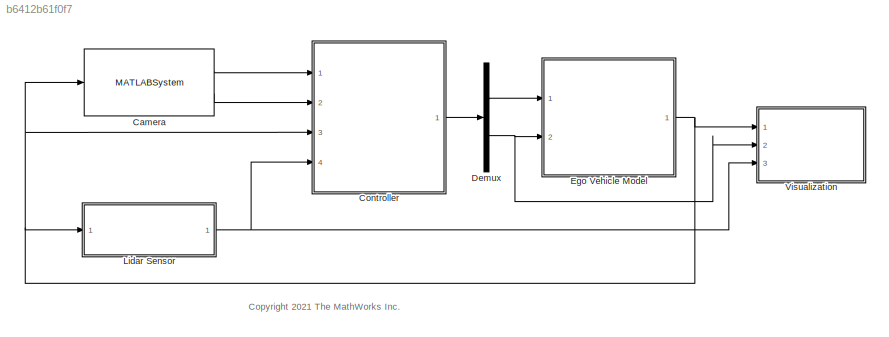
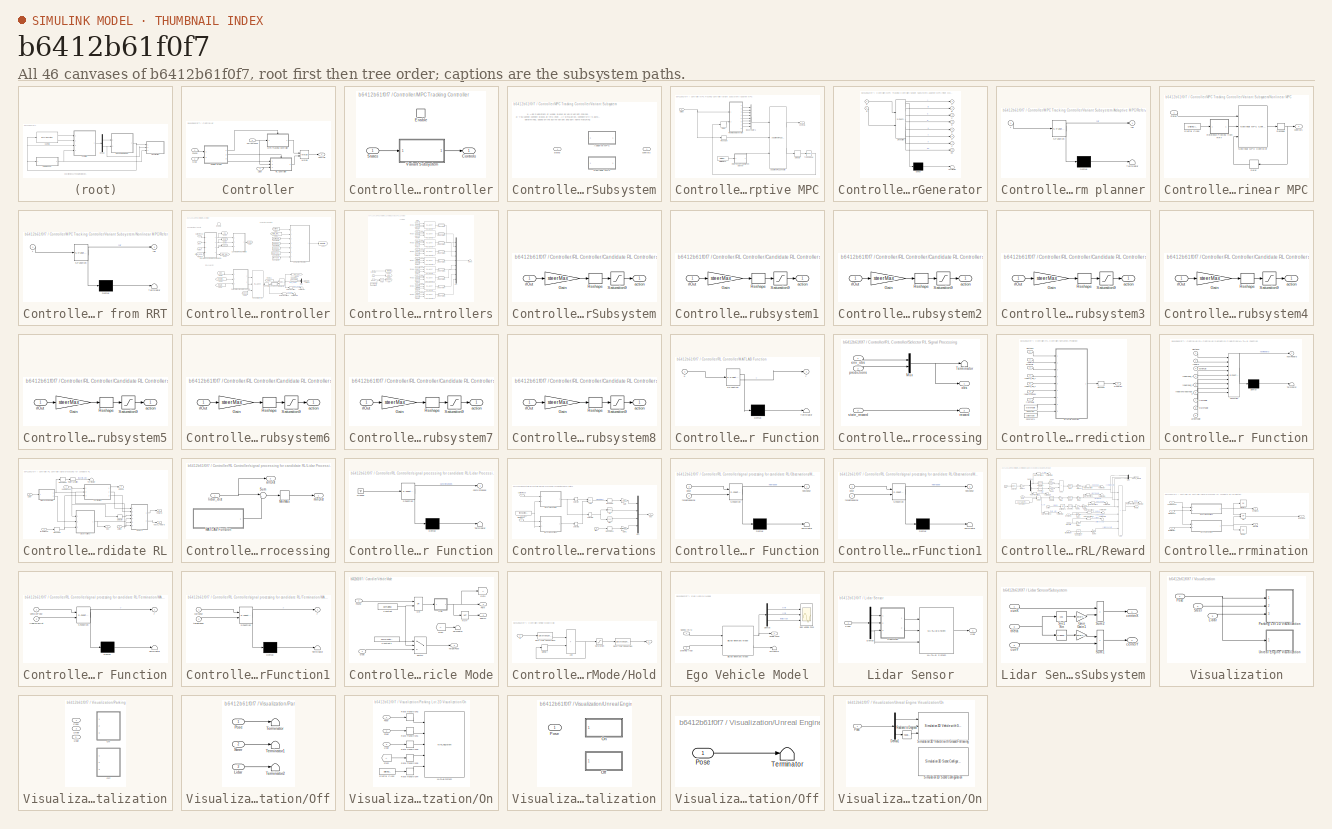
[diagram: thumbnail index - all 46 canvases of the model, root first then tree order]
MODEL slx_b6412b61f0f7
KIND model
CONFIG AbsTol = 1e-4
CONFIG EnableMultiTasking = off
CONFIG FixedStep = auto
CONFIG InitFcn = % show(map);\nif doTraining == 0 \nsetOccupied(map, 1:46); \nsetFree(map, freeSpotIndex); \nend
CONFIG MaxStep = auto
CONFIG MinStep = auto
CONFIG RelTol = 1e-3
CONFIG SampleTimeConstraint = Unconstrained
CONFIG SolverName = VariableStepAuto
CONFIG StartTime = 0.0
CONFIG StopTime = Tf
BLOCK [MATLABSystem] Camera
  MapObject = map
  MaskDisplay = disp('Camera');\nport_label('input',1,'pose');\nport_label('output',1,'found');\nport_label('output',2,'goal');
  MaskType = Camera
  MaxDepth = cameraDepth
  MaxViewAngle = cameraViewAngle
  Ports = [1, 2]
  System = Camera
BLOCK [SubSystem] Controller
  Ports = [4, 1]
  RequestExecContextInheritance = off
BLOCK [Outport] Controller/Controls
BLOCK [Inport] Controller/CurrentPose
  Port = 3
BLOCK [Inport] Controller/Found
BLOCK [Inport] Controller/Goal
  Port = 2
BLOCK [Inport] Controller/Lidar
  Port = 4
BLOCK [SubSystem] Controller/MPC Tracking Controller
  Ports = [1, 1, 1]
  RequestExecContextInheritance = off
BLOCK [Outport] Controller/MPC Tracking Controller/Controls
BLOCK [EnablePort] Controller/MPC Tracking Controller/Enable
  Ports = []
  StatesWhenEnabling = reset
BLOCK [Inport] Controller/MPC Tracking Controller/States
BLOCK [SubSystem] Controller/MPC Tracking Controller/Variant Subsystem
  LabelModeActiveChoice = Choice_1
  Ports = [1, 1]
  RequestExecContextInheritance = off
  Variant = on
  VariantControlMode = label
BLOCK [SubSystem] Controller/MPC Tracking Controller/Variant Subsystem/Adaptive MPC
  Ports = [1, 1]
  RequestExecContextInheritance = off
  VariantControl = Choice_1
BLOCK [Reference] Controller/MPC Tracking Controller/Variant Subsystem/Adaptive MPC/Adaptive MPC Controller  REF=mpclib/Adaptive MPC Controller  (lib defined in mdl_ae329e0e0455)
  Ports = [3, 2]
  SCDEnableBlockLinearizationSpecification = on
  SourceBlock = mpclib/Adaptive MPC Controller
  SourceProductBaseCode = MP
  SourceType = Adaptive MPC
BLOCK [BusCreator] Controller/MPC Tracking Controller/Variant Subsystem/Adaptive MPC/Bus Creator1
  DisplayOption = bar
  InheritFromInputs = on
  Inputs = 8
  Ports = [8, 1]
BLOCK [Delay] Controller/MPC Tracking Controller/Variant Subsystem/Adaptive MPC/Delay
  DelayLength = 1
  InputPortMap = u0
  Ports = [1, 1]
BLOCK [DigitalClock] Controller/MPC Tracking Controller/Variant Subsystem/Adaptive MPC/Digital Clock
  SampleTime = Ts
BLOCK [SubSystem] Controller/MPC Tracking Controller/Variant Subsystem/Adaptive MPC/Plant Model Generator
  ErrorFcn = Stateflow.Translate.translate
  PermitHierarchicalResolution = ExplicitOnly
  Ports = [2, 8]
  RequestExecContextInheritance = off
  SFBlockType = MATLAB Function
  TreatAsAtomicUnit = on
BLOCK [Demux] Controller/MPC Tracking Controller/Variant Subsystem/Adaptive MPC/Plant Model Generator/ Demux 
  Outputs = 1
  Ports = [1, 1]
BLOCK [S-Function] Controller/MPC Tracking Controller/Variant Subsystem/Adaptive MPC/Plant Model Generator/ SFunction 
  EnableBusSupport = on
  FunctionName = sf_sfun
  Parameters = Ts
  PortCounts = [2 9]
  Ports = [2, 9]
  SFcnIsStateOwnerBlock = off
  SFunctionDeploymentMode = off
  Tag = Stateflow S-Function 7
BLOCK [Terminator] Controller/MPC Tracking Controller/Variant Subsystem/Adaptive MPC/Plant Model Generator/ Terminator 
BLOCK [Outport] Controller/MPC Tracking Controller/Variant Subsystem/Adaptive MPC/Plant Model Generator/A
  VectorParamsAs1DForOutWhenUnconnected = off
BLOCK [Outport] Controller/MPC Tracking Controller/Variant Subsystem/Adaptive MPC/Plant Model Generator/B
  Port = 2
  VectorParamsAs1DForOutWhenUnconnected = off
BLOCK [Outport] Controller/MPC Tracking Controller/Variant Subsystem/Adaptive MPC/Plant Model Generator/C
  Port = 3
  VectorParamsAs1DForOutWhenUnconnected = off
BLOCK [Outport] Controller/MPC Tracking Controller/Variant Subsystem/Adaptive MPC/Plant Model Generator/D
  Port = 4
  VectorParamsAs1DForOutWhenUnconnected = off
BLOCK [Outport] Controller/MPC Tracking Controller/Variant Subsystem/Adaptive MPC/Plant Model Generator/DX
  Port = 8
  VectorParamsAs1DForOutWhenUnconnected = off
BLOCK [Outport] Controller/MPC Tracking Controller/Variant Subsystem/Adaptive MPC/Plant Model Generator/U
  Port = 5
  VectorParamsAs1DForOutWhenUnconnected = off
BLOCK [Outport] Controller/MPC Tracking Controller/Variant Subsystem/Adaptive MPC/Plant Model Generator/X
  Port = 7
  VectorParamsAs1DForOutWhenUnconnected = off
BLOCK [Outport] Controller/MPC Tracking Controller/Variant Subsystem/Adaptive MPC/Plant Model Generator/Y
  Port = 6
  VectorParamsAs1DForOutWhenUnconnected = off
BLOCK [Inport] Controller/MPC Tracking Controller/Variant Subsystem/Adaptive MPC/Plant Model Generator/u
  Port = 2
BLOCK [Inport] Controller/MPC Tracking Controller/Variant Subsystem/Adaptive MPC/Plant Model Generator/x
BLOCK [SubSystem] Controller/MPC Tracking Controller/Variant Subsystem/Adaptive MPC/Reference Preview from planner
  ErrorFcn = Stateflow.Translate.translate
  PermitHierarchicalResolution = ExplicitOnly
  Ports = [1, 1]
  RequestExecContextInheritance = off
  SFBlockType = MATLAB Function
  TreatAsAtomicUnit = on
BLOCK [Demux] Controller/MPC Tracking Controller/Variant Subsystem/Adaptive MPC/Reference Preview from planner/ Demux 
  Outputs = 1
  Ports = [1, 1]
BLOCK [S-Function] Controller/MPC Tracking Controller/Variant Subsystem/Adaptive MPC/Reference Preview from planner/ SFunction 
  EnableBusSupport = on
  FunctionName = sf_sfun
  Parameters = Tf,Ts,Xref,pTracking
  PortCounts = [1 2]
  Ports = [1, 2]
  SFcnIsStateOwnerBlock = off
  SFunctionDeploymentMode = off
  Tag = Stateflow S-Function 8
BLOCK [Terminator] Controller/MPC Tracking Controller/Variant Subsystem/Adaptive MPC/Reference Preview from planner/ Terminator 
BLOCK [Outport] Controller/MPC Tracking Controller/Variant Subsystem/Adaptive MPC/Reference Preview from planner/ref
  VectorParamsAs1DForOutWhenUnconnected = off
BLOCK [Inport] Controller/MPC Tracking Controller/Variant Subsystem/Adaptive MPC/Reference Preview from planner/t
BLOCK [Reshape] Controller/MPC Tracking Controller/Variant Subsystem/Adaptive MPC/Reshape
  OutputDimensionality = Customize
  OutputDimensions = [3,1]
  Ports = [1, 1]
BLOCK [Selector] Controller/MPC Tracking Controller/Variant Subsystem/Adaptive MPC/Selector
  IndexOptions = Index vector (dialog),Select all
  Indices = 2,2
  InputPortWidth = 3
  NumberOfDimensions = 2
  OutputSizes = 1,1
  Ports = [1, 1]
BLOCK [Math] Controller/MPC Tracking Controller/Variant Subsystem/Adaptive MPC/Transpose
  Operator = transpose
  Ports = [1, 1]
  SignedPower = on
BLOCK [Outport] Controller/MPC Tracking Controller/Variant Subsystem/Adaptive MPC/controls
BLOCK [Inport] Controller/MPC Tracking Controller/Variant Subsystem/Adaptive MPC/states
BLOCK [SubSystem] Controller/MPC Tracking Controller/Variant Subsystem/Nonlinear MPC
  Ports = [1, 1]
  RequestExecContextInheritance = off
  VariantControl = Choice_2
BLOCK [Delay] Controller/MPC Tracking Controller/Variant Subsystem/Nonlinear MPC/Delay
  DelayLength = 1
  InputPortMap = u0
  Ports = [1, 1]
BLOCK [DigitalClock] Controller/MPC Tracking Controller/Variant Subsystem/Nonlinear MPC/Digital Clock
  SampleTime = Ts
BLOCK [Reference] Controller/MPC Tracking Controller/Variant Subsystem/Nonlinear MPC/Nonlinear MPC Controller  REF=mpclib/Nonlinear MPC Controller  (lib defined in mdl_ae329e0e0455)
  Ports = [3, 1]
  SCDEnableBlockLinearizationSpecification = on
  SourceBlock = mpclib/Nonlinear MPC Controller
  SourceProductBaseCode = MP
  SourceType = NonlinearMPC
BLOCK [SubSystem] Controller/MPC Tracking Controller/Variant Subsystem/Nonlinear MPC/Reference Preview from RRT
  ErrorFcn = Stateflow.Translate.translate
  PermitHierarchicalResolution = ExplicitOnly
  Ports = [1, 1]
  RequestExecContextInheritance = off
  SFBlockType = MATLAB Function
  TreatAsAtomicUnit = on
BLOCK [Demux] Controller/MPC Tracking Controller/Variant Subsystem/Nonlinear MPC/Reference Preview from RRT/ Demux 
  Outputs = 1
  Ports = [1, 1]
BLOCK [S-Function] Controller/MPC Tracking Controller/Variant Subsystem/Nonlinear MPC/Reference Preview from RRT/ SFunction 
  EnableBusSupport = on
  FunctionName = sf_sfun
  Parameters = Tf,Ts,Xref,pTracking
  PortCounts = [1 2]
  Ports = [1, 2]
  SFcnIsStateOwnerBlock = off
  SFunctionDeploymentMode = off
  Tag = Stateflow S-Function 4
BLOCK [Terminator] Controller/MPC Tracking Controller/Variant Subsystem/Nonlinear MPC/Reference Preview from RRT/ Terminator 
BLOCK [Outport] Controller/MPC Tracking Controller/Variant Subsystem/Nonlinear MPC/Reference Preview from RRT/ref
  VectorParamsAs1DForOutWhenUnconnected = off
BLOCK [Inport] Controller/MPC Tracking Controller/Variant Subsystem/Nonlinear MPC/Reference Preview from RRT/t
BLOCK [Reshape] Controller/MPC Tracking Controller/Variant Subsystem/Nonlinear MPC/Reshape
  OutputDimensionality = Customize
  OutputDimensions = [2,1]
  Ports = [1, 1]
BLOCK [Outport] Controller/MPC Tracking Controller/Variant Subsystem/Nonlinear MPC/controls
BLOCK [Inport] Controller/MPC Tracking Controller/Variant Subsystem/Nonlinear MPC/states
BLOCK [Outport] Controller/MPC Tracking Controller/Variant Subsystem/controls
BLOCK [Inport] Controller/MPC Tracking Controller/Variant Subsystem/states
BLOCK [Merge] Controller/Merge
  Ports = [2, 1]
BLOCK [SubSystem] Controller/RL Controller
  Ports = [3, 1, 1]
  RequestExecContextInheritance = off
BLOCK [Outport] Controller/RL Controller/Actions
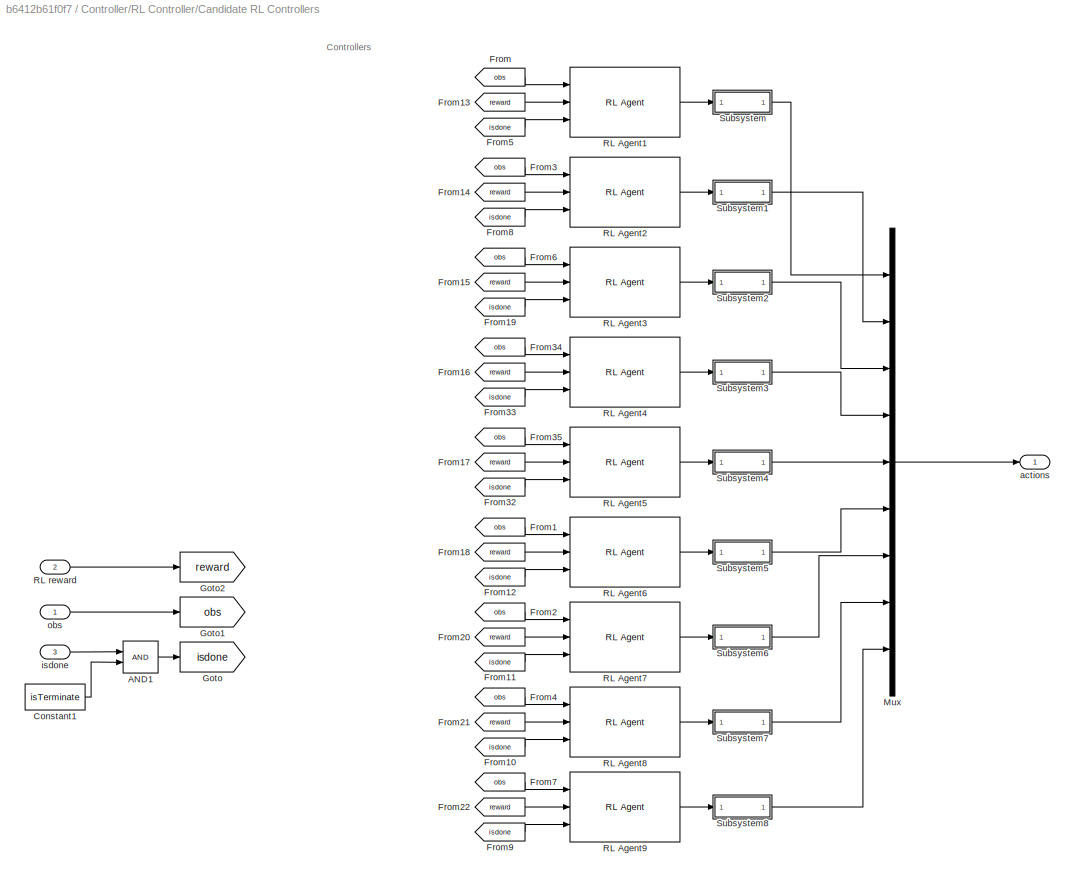
BLOCK [SubSystem] Controller/RL Controller/Candidate RL Controllers
  Ports = [3, 1]
  RequestExecContextInheritance = off
BLOCK [Logic] Controller/RL Controller/Candidate RL Controllers/AND1
  AllPortsSameDT = off
  IconShape = distinctive
  OutDataTypeStr = boolean
  Ports = [2, 1]
BLOCK [Constant] Controller/RL Controller/Candidate RL Controllers/Constant1
  Value = isTerminate
BLOCK [From] Controller/RL Controller/Candidate RL Controllers/From
  GotoTag = obs
BLOCK [From] Controller/RL Controller/Candidate RL Controllers/From1
  GotoTag = obs
BLOCK [From] Controller/RL Controller/Candidate RL Controllers/From10
  GotoTag = isdone
BLOCK [From] Controller/RL Controller/Candidate RL Controllers/From11
  GotoTag = isdone
BLOCK [From] Controller/RL Controller/Candidate RL Controllers/From12
  GotoTag = isdone
BLOCK [From] Controller/RL Controller/Candidate RL Controllers/From13
  GotoTag = reward
BLOCK [From] Controller/RL Controller/Candidate RL Controllers/From14
  GotoTag = reward
BLOCK [From] Controller/RL Controller/Candidate RL Controllers/From15
  GotoTag = reward
BLOCK [From] Controller/RL Controller/Candidate RL Controllers/From16
  GotoTag = reward
BLOCK [From] Controller/RL Controller/Candidate RL Controllers/From17
  GotoTag = reward
BLOCK [From] Controller/RL Controller/Candidate RL Controllers/From18
  GotoTag = reward
BLOCK [From] Controller/RL Controller/Candidate RL Controllers/From19
  GotoTag = isdone
BLOCK [From] Controller/RL Controller/Candidate RL Controllers/From2
  GotoTag = obs
BLOCK [From] Controller/RL Controller/Candidate RL Controllers/From20
  GotoTag = reward
BLOCK [From] Controller/RL Controller/Candidate RL Controllers/From21
  GotoTag = reward
BLOCK [From] Controller/RL Controller/Candidate RL Controllers/From22
  GotoTag = reward
BLOCK [From] Controller/RL Controller/Candidate RL Controllers/From3
  GotoTag = obs
BLOCK [From] Controller/RL Controller/Candidate RL Controllers/From32
  GotoTag = isdone
BLOCK [From] Controller/RL Controller/Candidate RL Controllers/From33
  GotoTag = isdone
BLOCK [From] Controller/RL Controller/Candidate RL Controllers/From34
  GotoTag = obs
BLOCK [From] Controller/RL Controller/Candidate RL Controllers/From35
  GotoTag = obs
BLOCK [From] Controller/RL Controller/Candidate RL Controllers/From4
  GotoTag = obs
BLOCK [From] Controller/RL Controller/Candidate RL Controllers/From5
  GotoTag = isdone
BLOCK [From] Controller/RL Controller/Candidate RL Controllers/From6
  GotoTag = obs
BLOCK [From] Controller/RL Controller/Candidate RL Controllers/From7
  GotoTag = obs
BLOCK [From] Controller/RL Controller/Candidate RL Controllers/From8
  GotoTag = isdone
BLOCK [From] Controller/RL Controller/Candidate RL Controllers/From9
  GotoTag = isdone
BLOCK [Goto] Controller/RL Controller/Candidate RL Controllers/Goto
  GotoTag = isdone
BLOCK [Goto] Controller/RL Controller/Candidate RL Controllers/Goto1
  GotoTag = obs
BLOCK [Goto] Controller/RL Controller/Candidate RL Controllers/Goto2
  GotoTag = reward
BLOCK [Mux] Controller/RL Controller/Candidate RL Controllers/Mux
  DisplayOption = bar
  Inputs = 9
  Ports = [9, 1]
BLOCK [Reference] Controller/RL Controller/Candidate RL Controllers/RL Agent1  REF=rllib/RL Agent
  Ports = [3, 1]
  SourceBlock = rllib/RL Agent
  SourceProductBaseCode = RL
  SourceType = RL Agent
BLOCK [Reference] Controller/RL Controller/Candidate RL Controllers/RL Agent2  REF=rllib/RL Agent
  Ports = [3, 1]
  SourceBlock = rllib/RL Agent
  SourceProductBaseCode = RL
  SourceType = RL Agent
BLOCK [Reference] Controller/RL Controller/Candidate RL Controllers/RL Agent3  REF=rllib/RL Agent
  Ports = [3, 1]
  SourceBlock = rllib/RL Agent
  SourceProductBaseCode = RL
  SourceType = RL Agent
BLOCK [Reference] Controller/RL Controller/Candidate RL Controllers/RL Agent4  REF=rllib/RL Agent
  Ports = [3, 1]
  SourceBlock = rllib/RL Agent
  SourceProductBaseCode = RL
  SourceType = RL Agent
BLOCK [Reference] Controller/RL Controller/Candidate RL Controllers/RL Agent5  REF=rllib/RL Agent
  Ports = [3, 1]
  SourceBlock = rllib/RL Agent
  SourceProductBaseCode = RL
  SourceType = RL Agent
BLOCK [Reference] Controller/RL Controller/Candidate RL Controllers/RL Agent6  REF=rllib/RL Agent
  Ports = [3, 1]
  SourceBlock = rllib/RL Agent
  SourceProductBaseCode = RL
  SourceType = RL Agent
BLOCK [Reference] Controller/RL Controller/Candidate RL Controllers/RL Agent7  REF=rllib/RL Agent
  Ports = [3, 1]
  SourceBlock = rllib/RL Agent
  SourceProductBaseCode = RL
  SourceType = RL Agent
BLOCK [Reference] Controller/RL Controller/Candidate RL Controllers/RL Agent8  REF=rllib/RL Agent
  Ports = [3, 1]
  SourceBlock = rllib/RL Agent
  SourceProductBaseCode = RL
  SourceType = RL Agent
BLOCK [Reference] Controller/RL Controller/Candidate RL Controllers/RL Agent9  REF=rllib/RL Agent
  Ports = [3, 1]
  SourceBlock = rllib/RL Agent
  SourceProductBaseCode = RL
  SourceType = RL Agent
BLOCK [Inport] Controller/RL Controller/Candidate RL Controllers/RL reward
  Port = 2
BLOCK [SubSystem] Controller/RL Controller/Candidate RL Controllers/Subsystem
  Ports = [1, 1]
  RequestExecContextInheritance = off
BLOCK [Gain] Controller/RL Controller/Candidate RL Controllers/Subsystem/Gain
  Gain = steerMax
BLOCK [Reshape] Controller/RL Controller/Candidate RL Controllers/Subsystem/Reshape
  Ports = [1, 1]
BLOCK [Saturate] Controller/RL Controller/Candidate RL Controllers/Subsystem/Saturation9
  LowerLimit = -steerMax
  UpperLimit = steerMax
BLOCK [Outport] Controller/RL Controller/Candidate RL Controllers/Subsystem/action
BLOCK [Inport] Controller/RL Controller/Candidate RL Controllers/Subsystem/rlOut
BLOCK [SubSystem] Controller/RL Controller/Candidate RL Controllers/Subsystem1
  Ports = [1, 1]
  RequestExecContextInheritance = off
BLOCK [Gain] Controller/RL Controller/Candidate RL Controllers/Subsystem1/Gain
  Gain = steerMax
BLOCK [Reshape] Controller/RL Controller/Candidate RL Controllers/Subsystem1/Reshape
  Ports = [1, 1]
BLOCK [Saturate] Controller/RL Controller/Candidate RL Controllers/Subsystem1/Saturation9
  LowerLimit = -steerMax
  UpperLimit = steerMax
BLOCK [Outport] Controller/RL Controller/Candidate RL Controllers/Subsystem1/action
BLOCK [Inport] Controller/RL Controller/Candidate RL Controllers/Subsystem1/rlOut
BLOCK [SubSystem] Controller/RL Controller/Candidate RL Controllers/Subsystem2
  Ports = [1, 1]
  RequestExecContextInheritance = off
BLOCK [Gain] Controller/RL Controller/Candidate RL Controllers/Subsystem2/Gain
  Gain = steerMax
BLOCK [Reshape] Controller/RL Controller/Candidate RL Controllers/Subsystem2/Reshape
  Ports = [1, 1]
BLOCK [Saturate] Controller/RL Controller/Candidate RL Controllers/Subsystem2/Saturation9
  LowerLimit = -steerMax
  UpperLimit = steerMax
BLOCK [Outport] Controller/RL Controller/Candidate RL Controllers/Subsystem2/action
BLOCK [Inport] Controller/RL Controller/Candidate RL Controllers/Subsystem2/rlOut
BLOCK [SubSystem] Controller/RL Controller/Candidate RL Controllers/Subsystem3
  Ports = [1, 1]
  RequestExecContextInheritance = off
BLOCK [Gain] Controller/RL Controller/Candidate RL Controllers/Subsystem3/Gain
  Gain = steerMax
BLOCK [Reshape] Controller/RL Controller/Candidate RL Controllers/Subsystem3/Reshape
  Ports = [1, 1]
BLOCK [Saturate] Controller/RL Controller/Candidate RL Controllers/Subsystem3/Saturation9
  LowerLimit = -steerMax
  UpperLimit = steerMax
BLOCK [Outport] Controller/RL Controller/Candidate RL Controllers/Subsystem3/action
BLOCK [Inport] Controller/RL Controller/Candidate RL Controllers/Subsystem3/rlOut
BLOCK [SubSystem] Controller/RL Controller/Candidate RL Controllers/Subsystem4
  Ports = [1, 1]
  RequestExecContextInheritance = off
BLOCK [Gain] Controller/RL Controller/Candidate RL Controllers/Subsystem4/Gain
  Gain = steerMax
BLOCK [Reshape] Controller/RL Controller/Candidate RL Controllers/Subsystem4/Reshape
  Ports = [1, 1]
BLOCK [Saturate] Controller/RL Controller/Candidate RL Controllers/Subsystem4/Saturation9
  LowerLimit = -steerMax
  UpperLimit = steerMax
BLOCK [Outport] Controller/RL Controller/Candidate RL Controllers/Subsystem4/action
BLOCK [Inport] Controller/RL Controller/Candidate RL Controllers/Subsystem4/rlOut
BLOCK [SubSystem] Controller/RL Controller/Candidate RL Controllers/Subsystem5
  Ports = [1, 1]
  RequestExecContextInheritance = off
BLOCK [Gain] Controller/RL Controller/Candidate RL Controllers/Subsystem5/Gain
  Gain = steerMax
BLOCK [Reshape] Controller/RL Controller/Candidate RL Controllers/Subsystem5/Reshape
  Ports = [1, 1]
BLOCK [Saturate] Controller/RL Controller/Candidate RL Controllers/Subsystem5/Saturation9
  LowerLimit = -steerMax
  UpperLimit = steerMax
BLOCK [Outport] Controller/RL Controller/Candidate RL Controllers/Subsystem5/action
BLOCK [Inport] Controller/RL Controller/Candidate RL Controllers/Subsystem5/rlOut
BLOCK [SubSystem] Controller/RL Controller/Candidate RL Controllers/Subsystem6
  Ports = [1, 1]
  RequestExecContextInheritance = off
BLOCK [Gain] Controller/RL Controller/Candidate RL Controllers/Subsystem6/Gain
  Gain = steerMax
BLOCK [Reshape] Controller/RL Controller/Candidate RL Controllers/Subsystem6/Reshape
  Ports = [1, 1]
BLOCK [Saturate] Controller/RL Controller/Candidate RL Controllers/Subsystem6/Saturation9
  LowerLimit = -steerMax
  UpperLimit = steerMax
BLOCK [Outport] Controller/RL Controller/Candidate RL Controllers/Subsystem6/action
BLOCK [Inport] Controller/RL Controller/Candidate RL Controllers/Subsystem6/rlOut
BLOCK [SubSystem] Controller/RL Controller/Candidate RL Controllers/Subsystem7
  Ports = [1, 1]
  RequestExecContextInheritance = off
BLOCK [Gain] Controller/RL Controller/Candidate RL Controllers/Subsystem7/Gain
  Gain = steerMax
BLOCK [Reshape] Controller/RL Controller/Candidate RL Controllers/Subsystem7/Reshape
  Ports = [1, 1]
BLOCK [Saturate] Controller/RL Controller/Candidate RL Controllers/Subsystem7/Saturation9
  LowerLimit = -steerMax
  UpperLimit = steerMax
BLOCK [Outport] Controller/RL Controller/Candidate RL Controllers/Subsystem7/action
BLOCK [Inport] Controller/RL Controller/Candidate RL Controllers/Subsystem7/rlOut
BLOCK [SubSystem] Controller/RL Controller/Candidate RL Controllers/Subsystem8
  Ports = [1, 1]
  RequestExecContextInheritance = off
BLOCK [Gain] Controller/RL Controller/Candidate RL Controllers/Subsystem8/Gain
  Gain = steerMax
BLOCK [Reshape] Controller/RL Controller/Candidate RL Controllers/Subsystem8/Reshape
  Ports = [1, 1]
BLOCK [Saturate] Controller/RL Controller/Candidate RL Controllers/Subsystem8/Saturation9
  LowerLimit = -steerMax
  UpperLimit = steerMax
BLOCK [Outport] Controller/RL Controller/Candidate RL Controllers/Subsystem8/action
BLOCK [Inport] Controller/RL Controller/Candidate RL Controllers/Subsystem8/rlOut
BLOCK [Outport] Controller/RL Controller/Candidate RL Controllers/actions
BLOCK [Inport] Controller/RL Controller/Candidate RL Controllers/isdone
  Port = 3
BLOCK [Inport] Controller/RL Controller/Candidate RL Controllers/obs
BLOCK [Constant] Controller/RL Controller/Constant
  Value = speedMax
BLOCK [Constant] Controller/RL Controller/Constant5
  Value = actionUB
BLOCK [Constant] Controller/RL Controller/Constant6
  Value = rewardUB1
BLOCK [Constant] Controller/RL Controller/Constant7
  Value = rewardUB2
BLOCK [Constant] Controller/RL Controller/Constant8
  Value = rewardToIndex
BLOCK [Constant] Controller/RL Controller/Constant9
  Value = tranTable
BLOCK [Inport] Controller/RL Controller/CurrentPose
  Port = 2
BLOCK [EnablePort] Controller/RL Controller/Enable
  Ports = []
  StatesWhenEnabling = reset
BLOCK [From] Controller/RL Controller/From
  GotoTag = actions
BLOCK [From] Controller/RL Controller/From1
  GotoTag = state_reward
BLOCK [From] Controller/RL Controller/From2
  GotoTag = obs
BLOCK [From] Controller/RL Controller/From3
  GotoTag = predictions
BLOCK [From] Controller/RL Controller/From31
  GotoTag = actions
BLOCK [From] Controller/RL Controller/From4
  GotoTag = reward
BLOCK [From] Controller/RL Controller/From5
  GotoTag = isDone
BLOCK [From] Controller/RL Controller/From6
  GotoTag = steer_angle
BLOCK [Goto] Controller/RL Controller/Goto
  GotoTag = actions
BLOCK [Goto] Controller/RL Controller/Goto1
  GotoTag = state_reward
BLOCK [Goto] Controller/RL Controller/Goto2
  GotoTag = predictions
BLOCK [Goto] Controller/RL Controller/Goto3
  GotoTag = obs
BLOCK [Goto] Controller/RL Controller/Goto4
  GotoTag = reward
BLOCK [Goto] Controller/RL Controller/Goto5
  GotoTag = steer_angle
BLOCK [Goto] Controller/RL Controller/Goto6
  GotoTag = isDone
BLOCK [Inport] Controller/RL Controller/Lidar
  Port = 3
BLOCK [SubSystem] Controller/RL Controller/MATLAB Function
  ErrorFcn = Stateflow.Translate.translate
  PermitHierarchicalResolution = ExplicitOnly
  Ports = [1, 1]
  RequestExecContextInheritance = off
  SFBlockType = MATLAB Function
  TreatAsAtomicUnit = on
BLOCK [Demux] Controller/RL Controller/MATLAB Function/ Demux 
  Outputs = 1
  Ports = [1, 1]
BLOCK [S-Function] Controller/RL Controller/MATLAB Function/ SFunction 
  EnableBusSupport = on
  FunctionName = sf_sfun
  PortCounts = [1 2]
  Ports = [1, 2]
  SFcnIsStateOwnerBlock = off
  SFunctionDeploymentMode = off
  Tag = Stateflow S-Function 9
BLOCK [Terminator] Controller/RL Controller/MATLAB Function/ Terminator 
BLOCK [Inport] Controller/RL Controller/MATLAB Function/u
BLOCK [Outport] Controller/RL Controller/MATLAB Function/y
BLOCK [Mux] Controller/RL Controller/Mux
  DisplayOption = bar
  Inputs = 2
  Ports = [2, 1]
BLOCK [RateTransition] Controller/RL Controller/Rate Transition
  OutPortSampleTime = Ts_sample
BLOCK [RateTransition] Controller/RL Controller/Rate Transition1
  OutPortSampleTime = Ts_sample
BLOCK [Reshape] Controller/RL Controller/Reshape
  Ports = [1, 1]
BLOCK [Selector] Controller/RL Controller/Selector
  IndexOptions = Index vector (port)
  Indices = [1 3]
  OutputSizes = 1
  Ports = [2, 1]
BLOCK [SubSystem] Controller/RL Controller/Selector RL Signal Processing
  Ports = [3, 2]
  RequestExecContextInheritance = off
BLOCK [Mux] Controller/RL Controller/Selector RL Signal Processing/Mux
  DisplayOption = bar
  Inputs = 2
  Ports = [2, 1]
BLOCK [Terminator] Controller/RL Controller/Selector RL Signal Processing/Terminator
BLOCK [Inport] Controller/RL Controller/Selector RL Signal Processing/env_obs
BLOCK [Outport] Controller/RL Controller/Selector RL Signal Processing/obs
BLOCK [Inport] Controller/RL Controller/Selector RL Signal Processing/predictions
  Port = 2
BLOCK [Outport] Controller/RL Controller/Selector RL Signal Processing/reward
  Port = 2
BLOCK [Inport] Controller/RL Controller/Selector RL Signal Processing/state_reward
  Port = 3
BLOCK [SubSystem] Controller/RL Controller/Semantics Prediction
  Ports = [7, 1]
  RequestExecContextInheritance = off
BLOCK [Constant] Controller/RL Controller/Semantics Prediction/Constant
  Value = stateTable
BLOCK [Constant] Controller/RL Controller/Semantics Prediction/Constant1
  Value = actionTable
BLOCK [SubSystem] Controller/RL Controller/Semantics Prediction/MATLAB Function
  ErrorFcn = Stateflow.Translate.translate
  PermitHierarchicalResolution = ExplicitOnly
  Ports = [9, 1]
  RequestExecContextInheritance = off
  SFBlockType = MATLAB Function
  TreatAsAtomicUnit = on
BLOCK [Demux] Controller/RL Controller/Semantics Prediction/MATLAB Function/ Demux 
  Outputs = 1
  Ports = [1, 1]
BLOCK [S-Function] Controller/RL Controller/Semantics Prediction/MATLAB Function/ SFunction 
  EnableBusSupport = on
  FunctionName = sf_sfun
  PortCounts = [9 2]
  Ports = [9, 2]
  SFcnIsStateOwnerBlock = off
  SFunctionDeploymentMode = off
  Tag = Stateflow S-Function 12
BLOCK [Terminator] Controller/RL Controller/Semantics Prediction/MATLAB Function/ Terminator 
BLOCK [Inport] Controller/RL Controller/Semantics Prediction/MATLAB Function/actionTable
  Port = 9
BLOCK [Inport] Controller/RL Controller/Semantics Prediction/MATLAB Function/actionUB
  Port = 3
BLOCK [Inport] Controller/RL Controller/Semantics Prediction/MATLAB Function/allActions
BLOCK [Outport] Controller/RL Controller/Semantics Prediction/MATLAB Function/nextReward
BLOCK [Inport] Controller/RL Controller/Semantics Prediction/MATLAB Function/reward
  Port = 2
BLOCK [Inport] Controller/RL Controller/Semantics Prediction/MATLAB Function/rewardToIndexTable
  Port = 6
BLOCK [Inport] Controller/RL Controller/Semantics Prediction/MATLAB Function/rewardUB_1
  Port = 4
BLOCK [Inport] Controller/RL Controller/Semantics Prediction/MATLAB Function/rewardUB_2
  Port = 5
BLOCK [Inport] Controller/RL Controller/Semantics Prediction/MATLAB Function/stateTable
  Port = 8
BLOCK [Inport] Controller/RL Controller/Semantics Prediction/MATLAB Function/tranTable
  Port = 7
BLOCK [Reshape] Controller/RL Controller/Semantics Prediction/Reshape
  Ports = [1, 1]
BLOCK [Inport] Controller/RL Controller/Semantics Prediction/actionUB
  Port = 3
BLOCK [Inport] Controller/RL Controller/Semantics Prediction/allActions
BLOCK [Outport] Controller/RL Controller/Semantics Prediction/prediction
BLOCK [Inport] Controller/RL Controller/Semantics Prediction/reward
  Port = 2
BLOCK [Inport] Controller/RL Controller/Semantics Prediction/rewardToindex
  Port = 6
BLOCK [Inport] Controller/RL Controller/Semantics Prediction/reward_UB_1
  Port = 4
BLOCK [Inport] Controller/RL Controller/Semantics Prediction/reward_UB_2
  Port = 5
BLOCK [Inport] Controller/RL Controller/Semantics Prediction/tranTable
  Port = 7
BLOCK [Inport] Controller/RL Controller/Target
BLOCK [Terminator] Controller/RL Controller/Terminator
BLOCK [Terminator] Controller/RL Controller/Terminator1
BLOCK [Reference] Controller/RL Controller/ensemble_RL  REF=rllib/RL Agent
  Ports = [3, 1]
  SourceBlock = rllib/RL Agent
  SourceProductBaseCode = RL
  SourceType = RL Agent
BLOCK [SubSystem] Controller/RL Controller/signal processing for candidate RL
  Ports = [4, 4]
  RequestExecContextInheritance = off
BLOCK [Inport] Controller/RL Controller/signal processing for candidate RL/Lidar
  Port = 2
BLOCK [SubSystem] Controller/RL Controller/signal processing for candidate RL/Lidar Processing
  Ports = [1, 2]
  RequestExecContextInheritance = off
BLOCK [SubSystem] Controller/RL Controller/signal processing for candidate RL/Lidar Processing/MATLAB Function
  ErrorFcn = Stateflow.Translate.translate
  PermitHierarchicalResolution = ExplicitOnly
  Ports = [0, 1]
  RequestExecContextInheritance = off
  SFBlockType = MATLAB Function
  TreatAsAtomicUnit = on
BLOCK [Demux] Controller/RL Controller/signal processing for candidate RL/Lidar Processing/MATLAB Function/ Demux 
  Outputs = 1
  Ports = [1, 1]
BLOCK [Ground] Controller/RL Controller/signal processing for candidate RL/Lidar Processing/MATLAB Function/ Ground 
BLOCK [S-Function] Controller/RL Controller/signal processing for candidate RL/Lidar Processing/MATLAB Function/ SFunction 
  EnableBusSupport = on
  FunctionName = sf_sfun
  Parameters = L,W,res
  PortCounts = [1 2]
  Ports = [1, 2]
  SFcnIsStateOwnerBlock = off
  SFunctionDeploymentMode = off
  Tag = Stateflow S-Function 3
BLOCK [Terminator] Controller/RL Controller/signal processing for candidate RL/Lidar Processing/MATLAB Function/ Terminator 
BLOCK [Outport] Controller/RL Controller/signal processing for candidate RL/Lidar Processing/MATLAB Function/carDistances
BLOCK [MinMax] Controller/RL Controller/signal processing for candidate RL/Lidar Processing/MinMax
  Ports = [1, 1]
BLOCK [Sum] Controller/RL Controller/signal processing for candidate RL/Lidar Processing/Sum
  Inputs = |+-
  Ports = [2, 1]
BLOCK [Outport] Controller/RL Controller/signal processing for candidate RL/Lidar Processing/allDist
  Port = 2
BLOCK [Inport] Controller/RL Controller/signal processing for candidate RL/Lidar Processing/lidar_dist
BLOCK [Outport] Controller/RL Controller/signal processing for candidate RL/Lidar Processing/minDist
BLOCK [SubSystem] Controller/RL Controller/signal processing for candidate RL/Observations
  Ports = [3, 1]
  RequestExecContextInheritance = off
BLOCK [Sum] Controller/RL Controller/signal processing for candidate RL/Observations/Add
  IconShape = rectangular
  Inputs = +-
  Ports = [2, 1]
BLOCK [Constant] Controller/RL Controller/signal processing for candidate RL/Observations/Constant
  Value = freeSpotIndex
BLOCK [Gain] Controller/RL Controller/signal processing for candidate RL/Observations/Gain
  Gain = 1/10
BLOCK [Gain] Controller/RL Controller/signal processing for candidate RL/Observations/Gain1
  Gain = 1/maxLidarDist
BLOCK [SubSystem] Controller/RL Controller/signal processing for candidate RL/Observations/MATLAB Function
  ErrorFcn = Stateflow.Translate.translate
  PermitHierarchicalResolution = ExplicitOnly
  Ports = [2, 1]
  RequestExecContextInheritance = off
  SFBlockType = MATLAB Function
  TreatAsAtomicUnit = on
BLOCK [Demux] Controller/RL Controller/signal processing for candidate RL/Observations/MATLAB Function/ Demux 
  Outputs = 1
  Ports = [1, 1]
BLOCK [S-Function] Controller/RL Controller/signal processing for candidate RL/Observations/MATLAB Function/ SFunction 
  EnableBusSupport = on
  FunctionName = sf_sfun
  PortCounts = [2 2]
  Ports = [2, 2]
  SFcnIsStateOwnerBlock = off
  SFunctionDeploymentMode = off
  Tag = Stateflow S-Function 2
BLOCK [Terminator] Controller/RL Controller/signal processing for candidate RL/Observations/MATLAB Function/ Terminator 
BLOCK [Outport] Controller/RL Controller/signal processing for candidate RL/Observations/MATLAB Function/newpose
BLOCK [Inport] Controller/RL Controller/signal processing for candidate RL/Observations/MATLAB Function/pose
BLOCK [Inport] Controller/RL Controller/signal processing for candidate RL/Observations/MATLAB Function/targetposeidx
  Port = 2
BLOCK [SubSystem] Controller/RL Controller/signal processing for candidate RL/Observations/MATLAB Function1
  ErrorFcn = Stateflow.Translate.translate
  PermitHierarchicalResolution = ExplicitOnly
  Ports = [2, 1]
  RequestExecContextInheritance = off
  SFBlockType = MATLAB Function
  TreatAsAtomicUnit = on
BLOCK [Demux] Controller/RL Controller/signal processing for candidate RL/Observations/MATLAB Function1/ Demux 
  Outputs = 1
  Ports = [1, 1]
BLOCK [S-Function] Controller/RL Controller/signal processing for candidate RL/Observations/MATLAB Function1/ SFunction 
  EnableBusSupport = on
  FunctionName = sf_sfun
  PortCounts = [2 2]
  Ports = [2, 2]
  SFcnIsStateOwnerBlock = off
  SFunctionDeploymentMode = off
  Tag = Stateflow S-Function 6
BLOCK [Terminator] Controller/RL Controller/signal processing for candidate RL/Observations/MATLAB Function1/ Terminator 
BLOCK [Outport] Controller/RL Controller/signal processing for candidate RL/Observations/MATLAB Function1/newpose
BLOCK [Inport] Controller/RL Controller/signal processing for candidate RL/Observations/MATLAB Function1/pose
BLOCK [Inport] Controller/RL Controller/signal processing for candidate RL/Observations/MATLAB Function1/targetposeidx
  Port = 2
BLOCK [Mux] Controller/RL Controller/signal processing for candidate RL/Observations/Mux
  DisplayOption = bar
  Ports = [4, 1]
BLOCK [Reshape] Controller/RL Controller/signal processing for candidate RL/Observations/Reshape
  Ports = [1, 1]
BLOCK [Reshape] Controller/RL Controller/signal processing for candidate RL/Observations/Reshape1
  Ports = [1, 1]
BLOCK [Selector] Controller/RL Controller/signal processing for candidate RL/Observations/Selector
  IndexOptions = Index vector (dialog)
  Indices = 1:2
  InputPortWidth = 3
  OutputSizes = 1
  Ports = [1, 1]
BLOCK [Selector] Controller/RL Controller/signal processing for candidate RL/Observations/Selector1
  IndexOptions = Index vector (dialog)
  Indices = 1:2
  InputPortWidth = 3
  OutputSizes = 1
  Ports = [1, 1]
BLOCK [Selector] Controller/RL Controller/signal processing for candidate RL/Observations/Selector3
  IndexOptions = Index vector (dialog)
  Indices = 3
  InputPortWidth = 3
  OutputSizes = 1
  Ports = [1, 1]
BLOCK [Trigonometry] Controller/RL Controller/signal processing for candidate RL/Observations/Sin
  Ports = [1, 1]
BLOCK [Trigonometry] Controller/RL Controller/signal processing for candidate RL/Observations/Sin1
  Operator = cos
  Ports = [1, 1]
BLOCK [Inport] Controller/RL Controller/signal processing for candidate RL/Observations/currentPose
BLOCK [Inport] Controller/RL Controller/signal processing for candidate RL/Observations/lidar
  Port = 2
BLOCK [Outport] Controller/RL Controller/signal processing for candidate RL/Observations/obs
BLOCK [Inport] Controller/RL Controller/signal processing for candidate RL/Observations/targetPose
  Port = 3
BLOCK [RateTransition] Controller/RL Controller/signal processing for candidate RL/Rate Transition
  OutPortSampleTime = Ts_sample
BLOCK [Reshape] Controller/RL Controller/signal processing for candidate RL/Reshape
  Ports = [1, 1]
BLOCK [Reshape] Controller/RL Controller/signal processing for candidate RL/Reshape1
  Ports = [1, 1]
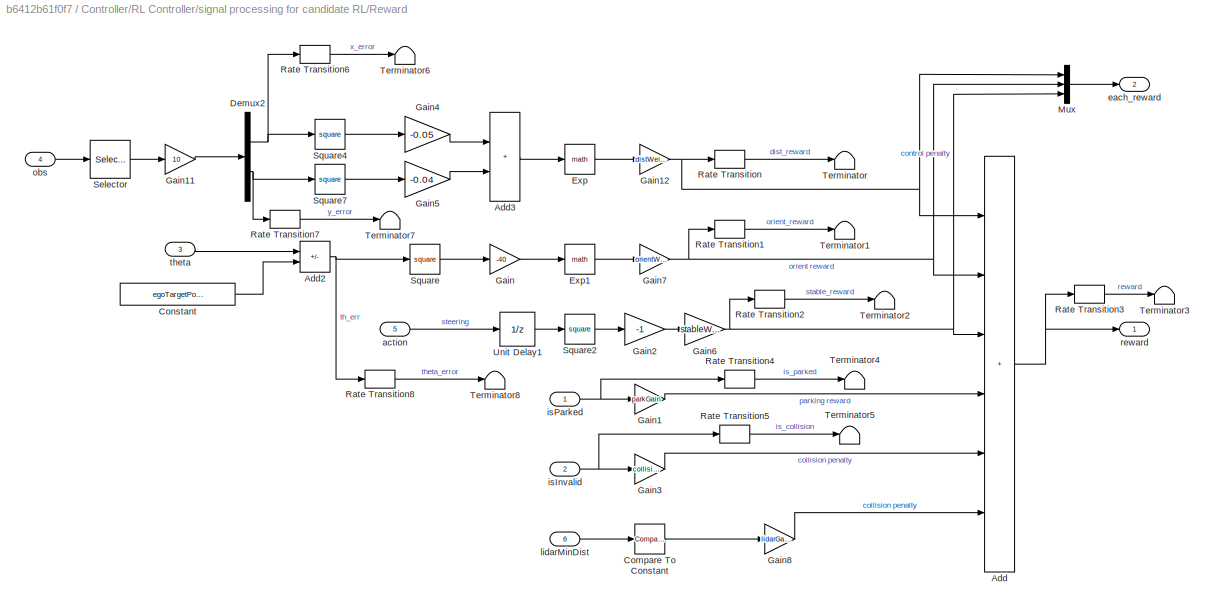
BLOCK [SubSystem] Controller/RL Controller/signal processing for candidate RL/Reward
  Ports = [6, 2]
  RequestExecContextInheritance = off
BLOCK [Sum] Controller/RL Controller/signal processing for candidate RL/Reward/Add
  IconShape = rectangular
  Inputs = ++++++
  Ports = [6, 1]
BLOCK [Sum] Controller/RL Controller/signal processing for candidate RL/Reward/Add2
  IconShape = rectangular
  Inputs = +-
  Ports = [2, 1]
BLOCK [Sum] Controller/RL Controller/signal processing for candidate RL/Reward/Add3
  IconShape = rectangular
  Ports = [2, 1]
BLOCK [Reference] Controller/RL Controller/signal processing for candidate RL/Reward/Compare To Constant  REF=simulink/Logic and Bit
Operations/Compare
To Constant
  Ports = [1, 1]
  SourceBlock = simulink/Logic and Bit\nOperations/Compare\nTo Constant
  SourceProductBaseCode = SL
  SourceType = Compare To Constant
BLOCK [Constant] Controller/RL Controller/signal processing for candidate RL/Reward/Constant
  Value = egoTargetPose(3)
BLOCK [Demux] Controller/RL Controller/signal processing for candidate RL/Reward/Demux2
  Outputs = 2
  Ports = [1, 2]
BLOCK [Math] Controller/RL Controller/signal processing for candidate RL/Reward/Exp
  Ports = [1, 1]
BLOCK [Math] Controller/RL Controller/signal processing for candidate RL/Reward/Exp1
  Ports = [1, 1]
BLOCK [Gain] Controller/RL Controller/signal processing for candidate RL/Reward/Gain
  Gain = -40
BLOCK [Gain] Controller/RL Controller/signal processing for candidate RL/Reward/Gain1
  Gain = parkGain
BLOCK [Gain] Controller/RL Controller/signal processing for candidate RL/Reward/Gain11
  Gain = 10
BLOCK [Gain] Controller/RL Controller/signal processing for candidate RL/Reward/Gain12
  Gain = distWeight
BLOCK [Gain] Controller/RL Controller/signal processing for candidate RL/Reward/Gain2
  Gain = -1
BLOCK [Gain] Controller/RL Controller/signal processing for candidate RL/Reward/Gain3
  Gain = collisionGain
BLOCK [Gain] Controller/RL Controller/signal processing for candidate RL/Reward/Gain4
  Gain = -0.05
BLOCK [Gain] Controller/RL Controller/signal processing for candidate RL/Reward/Gain5
  Gain = -0.04
BLOCK [Gain] Controller/RL Controller/signal processing for candidate RL/Reward/Gain6
  Gain = stableWeight
BLOCK [Gain] Controller/RL Controller/signal processing for candidate RL/Reward/Gain7
  Gain = orientWeight
BLOCK [Gain] Controller/RL Controller/signal processing for candidate RL/Reward/Gain8
  Gain = lidarGain
BLOCK [Mux] Controller/RL Controller/signal processing for candidate RL/Reward/Mux
  DisplayOption = bar
  Inputs = 3
  Ports = [3, 1]
BLOCK [RateTransition] Controller/RL Controller/signal processing for candidate RL/Reward/Rate Transition
  OutPortSampleTime = Ts_sample
BLOCK [RateTransition] Controller/RL Controller/signal processing for candidate RL/Reward/Rate Transition1
  OutPortSampleTime = Ts_sample
BLOCK [RateTransition] Controller/RL Controller/signal processing for candidate RL/Reward/Rate Transition2
  OutPortSampleTime = Ts_sample
BLOCK [RateTransition] Controller/RL Controller/signal processing for candidate RL/Reward/Rate Transition3
  OutPortSampleTime = Ts_sample
BLOCK [RateTransition] Controller/RL Controller/signal processing for candidate RL/Reward/Rate Transition4
  OutPortSampleTime = Ts_sample
BLOCK [RateTransition] Controller/RL Controller/signal processing for candidate RL/Reward/Rate Transition5
  OutPortSampleTime = Ts_sample
BLOCK [RateTransition] Controller/RL Controller/signal processing for candidate RL/Reward/Rate Transition6
  OutPortSampleTime = Ts_sample
BLOCK [RateTransition] Controller/RL Controller/signal processing for candidate RL/Reward/Rate Transition7
  OutPortSampleTime = Ts_sample
BLOCK [RateTransition] Controller/RL Controller/signal processing for candidate RL/Reward/Rate Transition8
  OutPortSampleTime = Ts_sample
BLOCK [Selector] Controller/RL Controller/signal processing for candidate RL/Reward/Selector
  IndexOptions = Index vector (dialog)
  Indices = 1:2
  InputPortWidth = nObs
  OutputSizes = 1
  Ports = [1, 1]
BLOCK [Math] Controller/RL Controller/signal processing for candidate RL/Reward/Square
  Operator = square
  Ports = [1, 1]
BLOCK [Math] Controller/RL Controller/signal processing for candidate RL/Reward/Square2
  Operator = square
  Ports = [1, 1]
BLOCK [Math] Controller/RL Controller/signal processing for candidate RL/Reward/Square4
  Operator = square
  Ports = [1, 1]
BLOCK [Math] Controller/RL Controller/signal processing for candidate RL/Reward/Square7
  Operator = square
  Ports = [1, 1]
BLOCK [Terminator] Controller/RL Controller/signal processing for candidate RL/Reward/Terminator
BLOCK [Terminator] Controller/RL Controller/signal processing for candidate RL/Reward/Terminator1
BLOCK [Terminator] Controller/RL Controller/signal processing for candidate RL/Reward/Terminator2
BLOCK [Terminator] Controller/RL Controller/signal processing for candidate RL/Reward/Terminator3
BLOCK [Terminator] Controller/RL Controller/signal processing for candidate RL/Reward/Terminator4
BLOCK [Terminator] Controller/RL Controller/signal processing for candidate RL/Reward/Terminator5
BLOCK [Terminator] Controller/RL Controller/signal processing for candidate RL/Reward/Terminator6
BLOCK [Terminator] Controller/RL Controller/signal processing for candidate RL/Reward/Terminator7
BLOCK [Terminator] Controller/RL Controller/signal processing for candidate RL/Reward/Terminator8
BLOCK [UnitDelay] Controller/RL Controller/signal processing for candidate RL/Reward/Unit Delay1
  HasFrameUpgradeWarning = on
  SampleTime = -1
BLOCK [Inport] Controller/RL Controller/signal processing for candidate RL/Reward/action
  Port = 5
BLOCK [Outport] Controller/RL Controller/signal processing for candidate RL/Reward/each_reward
  Port = 2
BLOCK [Inport] Controller/RL Controller/signal processing for candidate RL/Reward/isInvalid
  Port = 2
BLOCK [Inport] Controller/RL Controller/signal processing for candidate RL/Reward/isParked
BLOCK [Inport] Controller/RL Controller/signal processing for candidate RL/Reward/lidarMinDist
  Port = 6
BLOCK [Inport] Controller/RL Controller/signal processing for candidate RL/Reward/obs
  Port = 4
BLOCK [Outport] Controller/RL Controller/signal processing for candidate RL/Reward/reward
BLOCK [Inport] Controller/RL Controller/signal processing for candidate RL/Reward/theta
  Port = 3
BLOCK [Selector] Controller/RL Controller/signal processing for candidate RL/Selector
  IndexOptions = Index vector (dialog)
  Indices = 3
  InputPortWidth = 3
  OutputSizes = 1
  Ports = [1, 1]
BLOCK [SubSystem] Controller/RL Controller/signal processing for candidate RL/Termination
  Ports = [3, 3]
  RequestExecContextInheritance = off
BLOCK [Display] Controller/RL Controller/signal processing for candidate RL/Termination/Display
  Decimation = 1
  Ports = [1]
BLOCK [Display] Controller/RL Controller/signal processing for candidate RL/Termination/Display1
  Decimation = 1
  Ports = [1]
BLOCK [SubSystem] Controller/RL Controller/signal processing for candidate RL/Termination/MATLAB Function
  ErrorFcn = Stateflow.Translate.translate
  PermitHierarchicalResolution = ExplicitOnly
  Ports = [2, 1]
  RequestExecContextInheritance = off
  SFBlockType = MATLAB Function
  TreatAsAtomicUnit = on
BLOCK [Demux] Controller/RL Controller/signal processing for candidate RL/Termination/MATLAB Function/ Demux 
  Outputs = 1
  Ports = [1, 1]
BLOCK [S-Function] Controller/RL Controller/signal processing for candidate RL/Termination/MATLAB Function/ SFunction 
  EnableBusSupport = on
  FunctionName = sf_sfun
  Parameters = doTraining,lidarTol,trainXBounds,trainYBounds,xBounds,yBounds
  PortCounts = [2 2]
  Ports = [2, 2]
  SFcnIsStateOwnerBlock = off
  SFunctionDeploymentMode = off
  Tag = Stateflow S-Function 1
BLOCK [Terminator] Controller/RL Controller/signal processing for candidate RL/Termination/MATLAB Function/ Terminator 
BLOCK [Inport] Controller/RL Controller/signal processing for candidate RL/Termination/MATLAB Function/lidarMinDist
  Port = 2
BLOCK [Inport] Controller/RL Controller/signal processing for candidate RL/Termination/MATLAB Function/vehiclePose
BLOCK [Outport] Controller/RL Controller/signal processing for candidate RL/Termination/MATLAB Function/y
BLOCK [SubSystem] Controller/RL Controller/signal processing for candidate RL/Termination/MATLAB Function1
  ErrorFcn = Stateflow.Translate.translate
  PermitHierarchicalResolution = ExplicitOnly
  Ports = [2, 1]
  RequestExecContextInheritance = off
  SFBlockType = MATLAB Function
  TreatAsAtomicUnit = on
BLOCK [Demux] Controller/RL Controller/signal processing for candidate RL/Termination/MATLAB Function1/ Demux 
  Outputs = 1
  Ports = [1, 1]
BLOCK [S-Function] Controller/RL Controller/signal processing for candidate RL/Termination/MATLAB Function1/ SFunction 
  EnableBusSupport = on
  FunctionName = sf_sfun
  Parameters = terrTol,xyerrTol
  PortCounts = [2 2]
  Ports = [2, 2]
  SFcnIsStateOwnerBlock = off
  SFunctionDeploymentMode = off
  Tag = Stateflow S-Function 5
BLOCK [Terminator] Controller/RL Controller/signal processing for candidate RL/Termination/MATLAB Function1/ Terminator 
BLOCK [Inport] Controller/RL Controller/signal processing for candidate RL/Termination/MATLAB Function1/currpose
BLOCK [Inport] Controller/RL Controller/signal processing for candidate RL/Termination/MATLAB Function1/targetpose
  Port = 2
BLOCK [Outport] Controller/RL Controller/signal processing for candidate RL/Termination/MATLAB Function1/y
BLOCK [Logic] Controller/RL Controller/signal processing for candidate RL/Termination/OR
  AllPortsSameDT = off
  Operator = OR
  OutDataTypeStr = boolean
  Ports = [2, 1]
BLOCK [Outport] Controller/RL Controller/signal processing for candidate RL/Termination/isInvalid
  Port = 3
BLOCK [Outport] Controller/RL Controller/signal processing for candidate RL/Termination/isParked
  Port = 2
BLOCK [Outport] Controller/RL Controller/signal processing for candidate RL/Termination/isRLDone
BLOCK [Inport] Controller/RL Controller/signal processing for candidate RL/Termination/lidarMinDist
  Port = 2
BLOCK [Inport] Controller/RL Controller/signal processing for candidate RL/Termination/targetPose
  Port = 3
BLOCK [Inport] Controller/RL Controller/signal processing for candidate RL/Termination/vehiclePose
BLOCK [Terminator] Controller/RL Controller/signal processing for candidate RL/Terminator
BLOCK [Inport] Controller/RL Controller/signal processing for candidate RL/action
  Port = 4
BLOCK [Outport] Controller/RL Controller/signal processing for candidate RL/each_reward
  Port = 4
BLOCK [Outport] Controller/RL Controller/signal processing for candidate RL/isDone
  Port = 3
BLOCK [Outport] Controller/RL Controller/signal processing for candidate RL/obs
BLOCK [Outport] Controller/RL Controller/signal processing for candidate RL/reward
  Port = 2
BLOCK [Inport] Controller/RL Controller/signal processing for candidate RL/targetpose
  Port = 3
BLOCK [Inport] Controller/RL Controller/signal processing for candidate RL/vehiclePose
BLOCK [SubSystem] Controller/Vehicle Mode
  Ports = [2, 3]
  RequestExecContextInheritance = off
BLOCK [Constant] Controller/Vehicle Mode/Constant
  Value = doTraining
BLOCK [Constant] Controller/Vehicle Mode/Constant1
  Value = egoTargetPose
BLOCK [Inport] Controller/Vehicle Mode/Found
BLOCK [From] Controller/Vehicle Mode/From
  TagVisibility = global
BLOCK [Inport] Controller/Vehicle Mode/Goal
  Port = 2
BLOCK [Goto] Controller/Vehicle Mode/Goto
  TagVisibility = global
BLOCK [SubSystem] Controller/Vehicle Mode/Hold
  Ports = [1, 1]
  RequestExecContextInheritance = off
BLOCK [Sum] Controller/Vehicle Mode/Hold/Add
  IconShape = rectangular
  Ports = [2, 1]
BLOCK [DataTypeConversion] Controller/Vehicle Mode/Hold/Data Type Conversion
  OutDataTypeStr = boolean
  RndMeth = Floor
  SaturateOnIntegerOverflow = off
BLOCK [DataTypeConversion] Controller/Vehicle Mode/Hold/Data Type Conversion2
  OutDataTypeStr = double
  RndMeth = Floor
  SaturateOnIntegerOverflow = off
BLOCK [Memory] Controller/Vehicle Mode/Hold/Memory
BLOCK [Saturate] Controller/Vehicle Mode/Hold/Saturation
  LowerLimit = 0
  UpperLimit = 1
BLOCK [Inport] Controller/Vehicle Mode/Hold/u
BLOCK [Outport] Controller/Vehicle Mode/Hold/y
BLOCK [Logic] Controller/Vehicle Mode/NOT
  AllPortsSameDT = off
  Operator = NOT
  OutDataTypeStr = boolean
  Ports = [1, 1]
BLOCK [Logic] Controller/Vehicle Mode/OR
  AllPortsSameDT = off
  Operator = OR
  OutDataTypeStr = boolean
  Ports = [2, 1]
BLOCK [Outport] Controller/Vehicle Mode/Park
  Port = 2
BLOCK [Outport] Controller/Vehicle Mode/Search
BLOCK [Switch] Controller/Vehicle Mode/Switch
  InputSameDT = off
  SaturateOnIntegerOverflow = off
  Threshold = 1
BLOCK [Outport] Controller/Vehicle Mode/TargetPose
  Port = 3
BLOCK [Terminator] Controller/Vehicle Mode/Terminator
BLOCK [Demux] Demux
  Outputs = 2
  Ports = [1, 2]
BLOCK [SubSystem] Ego Vehicle Model
  Ports = [2, 1]
  RequestExecContextInheritance = off
BLOCK [Reference] Ego Vehicle Model/Bicycle Kinematic Model  REF=robotmobilelib/Bicycle Kinematic Model
  Ports = [2, 2]
  SourceBlock = robotmobilelib/Bicycle Kinematic Model
  SourceProductBaseCode = RO
  SourceType = Bicycle Kinematic Model
BLOCK [Demux] Ego Vehicle Model/Demux
  Outputs = 3
  Ports = [1, 3]
BLOCK [Scope] Ego Vehicle Model/Ego Vehicle Pose
  Floating = off
  NumInputPorts = 3
  Ports = [3]
  ScopeSpecificationString = Simulink.scopes.TimeScopeBlockCfg('CurrentConfiguration', extmgr.ConfigurationSet(extmgr.Configuration('Core','General UI',true),extmgr.Configuration('Core','Source UI',true),extmgr.Configuration('Sources','WiredSimulink',true,'DataLoggingVariableName','ScopeData3'),extmgr.Configuration('Visuals','Time Domain',true,'SerializedDisplays',{struct('MinYLimReal','1.693','MaxYLimReal','44.26129','YLabel...<+2723ch>
BLOCK [Inport] Ego Vehicle Model/Speed (m//s)
BLOCK [Inport] Ego Vehicle Model/Steering (rad)
  Port = 2
BLOCK [Terminator] Ego Vehicle Model/Terminator
BLOCK [Outport] Ego Vehicle Model/Vehicle Pose
BLOCK [SubSystem] Lidar Sensor
  Ports = [1, 1]
  RequestExecContextInheritance = off
BLOCK [Demux] Lidar Sensor/Demux
  Outputs = 3
  Ports = [1, 3]
BLOCK [Outport] Lidar Sensor/Lidar
BLOCK [MATLABSystem] Lidar Sensor/MATLAB System
  CarGeometry = map.VehicleDimensions
  MapObject = map
  MaskDisplay = disp('LIDARSensor');\nport_label('input',1,'botx');\nport_label('input',2,'boty');\nport_label('input',3,'theta');\nport_label('output',1,'d');
  MaskType = LIDARSensor
  MaxDistance = maxLidarDist
  PlotLimits = [ xBounds yBounds ]
  Ports = [3, 1]
  SensorResolution = numSensors
  ShowLIDARPlot = 0
  System = LIDARSensor
BLOCK [Inport] Lidar Sensor/Pose
BLOCK [SubSystem] Lidar Sensor/Subsystem
  Ports = [3, 2]
  RequestExecContextInheritance = off
BLOCK [Gain] Lidar Sensor/Subsystem/Gain
  Gain = centerToRear
BLOCK [Gain] Lidar Sensor/Subsystem/Gain1
  Gain = centerToRear
BLOCK [Trigonometry] Lidar Sensor/Subsystem/Sin
  Ports = [1, 1]
BLOCK [Trigonometry] Lidar Sensor/Subsystem/Sin1
  Operator = cos
  Ports = [1, 1]
BLOCK [Sum] Lidar Sensor/Subsystem/Sum1
  IconShape = rectangular
  Ports = [2, 1]
BLOCK [Sum] Lidar Sensor/Subsystem/Sum2
  IconShape = rectangular
  Ports = [2, 1]
BLOCK [Outport] Lidar Sensor/Subsystem/centerX
BLOCK [Outport] Lidar Sensor/Subsystem/centerY
  Port = 2
BLOCK [Inport] Lidar Sensor/Subsystem/currX
BLOCK [Inport] Lidar Sensor/Subsystem/currY
  Port = 2
BLOCK [Inport] Lidar Sensor/Subsystem/theta
  Port = 3
BLOCK [SubSystem] Visualization
  Ports = [3]
  RequestExecContextInheritance = off
BLOCK [Inport] Visualization/Lidar
  Port = 3
BLOCK [SubSystem] Visualization/Parking Lot 2D Visualization
  LabelModeActiveChoice = VizOff
  Ports = [3]
  RequestExecContextInheritance = off
  Variant = on
  VariantControl = Choice
  VariantControlMode = label
BLOCK [Inport] Visualization/Parking Lot 2D Visualization/Lidar
  Port = 3
BLOCK [SubSystem] Visualization/Parking Lot 2D Visualization/Off
  Ports = [3]
  RequestExecContextInheritance = off
  VariantControl = VizOff
BLOCK [Inport] Visualization/Parking Lot 2D Visualization/Off/Lidar
  Port = 3
BLOCK [Inport] Visualization/Parking Lot 2D Visualization/Off/Pose
BLOCK [Inport] Visualization/Parking Lot 2D Visualization/Off/Steer
  Port = 2
BLOCK [Terminator] Visualization/Parking Lot 2D Visualization/Off/Terminator
BLOCK [Terminator] Visualization/Parking Lot 2D Visualization/Off/Terminator1
BLOCK [Terminator] Visualization/Parking Lot 2D Visualization/Off/Terminator2
BLOCK [SubSystem] Visualization/Parking Lot 2D Visualization/On
  Ports = [3]
  RequestExecContextInheritance = off
  VariantControl = VizOn
BLOCK [DigitalClock] Visualization/Parking Lot 2D Visualization/On/Digital Clock
  SampleTime = Ts
BLOCK [From] Visualization/Parking Lot 2D Visualization/On/From
  TagVisibility = global
BLOCK [Inport] Visualization/Parking Lot 2D Visualization/On/Lidar
  Port = 3
BLOCK [MATLABSystem] Visualization/Parking Lot 2D Visualization/On/MATLAB System
  CameraDepth = 10
  CameraViewAngle = deg2rad(60)
  MapObject = map
  MaskDisplay = disp('ParkingLot2DVisualizer');\nport_label('input',1,'pose');\nport_label('input',2,'steer');\nport_label('input',3,'lidar');\nport_label('input',4,'park');\nport_label('input',5,'currentTime');
  MaskType = ParkingLot2DVisualizer
  MaxLidarDistance = 6
  Ports = [5]
  System = ParkingLot2DVisualizer
  TrainingFlag = doTraining
BLOCK [Inport] Visualization/Parking Lot 2D Visualization/On/Pose
BLOCK [RateTransition] Visualization/Parking Lot 2D Visualization/On/Rate Transition1
BLOCK [RateTransition] Visualization/Parking Lot 2D Visualization/On/Rate Transition2
BLOCK [RateTransition] Visualization/Parking Lot 2D Visualization/On/Rate Transition3
BLOCK [RateTransition] Visualization/Parking Lot 2D Visualization/On/Rate Transition4
BLOCK [RateTransition] Visualization/Parking Lot 2D Visualization/On/Rate Transition5
BLOCK [Inport] Visualization/Parking Lot 2D Visualization/On/Steer
  Port = 2
BLOCK [Inport] Visualization/Parking Lot 2D Visualization/Pose
BLOCK [Inport] Visualization/Parking Lot 2D Visualization/Steer
  Port = 2
BLOCK [Inport] Visualization/Pose
BLOCK [Inport] Visualization/Steer
  Port = 2
BLOCK [SubSystem] Visualization/Unreal Engine Visualization
  LabelModeActiveChoice = UnrealOff
  Ports = [1]
  RequestExecContextInheritance = off
  Variant = on
  VariantControl = Choice
  VariantControlMode = label
BLOCK [SubSystem] Visualization/Unreal Engine Visualization/Off
  Ports = [1]
  RequestExecContextInheritance = off
  VariantControl = UnrealOff
BLOCK [Inport] Visualization/Unreal Engine Visualization/Off/Pose
BLOCK [Terminator] Visualization/Unreal Engine Visualization/Off/Terminator
BLOCK [SubSystem] Visualization/Unreal Engine Visualization/On
  Ports = [1]
  RequestExecContextInheritance = off
  VariantControl = UnrealOn
BLOCK [Demux] Visualization/Unreal Engine Visualization/On/Demux1
  Outputs = 3
  Ports = [1, 3]
BLOCK [Inport] Visualization/Unreal Engine Visualization/On/Pose
BLOCK [Reference] Visualization/Unreal Engine Visualization/On/Radians to Degrees  REF=simulink_extras/Transformations/Radians
to Degrees
  Ports = [1, 1]
  SourceBlock = simulink_extras/Transformations/Radians\nto Degrees
  SourceProductBaseCode = SL
  SourceType = RadiansToDegrees
BLOCK [Reference] Visualization/Unreal Engine Visualization/On/Simulation 3D Scene Configuration  REF=sim3dlib/Simulation 3D Scene Configuration
  Ports = []
  Priority = 0
  SourceBlock = sim3dlib/Simulation 3D Scene Configuration
  SourceProductBaseCode = VE,AE,DR,UV,VE
  SourceType = Simulation 3D Scene Configuration
BLOCK [Reference] Visualization/Unreal Engine Visualization/On/Simulation 3D Vehicle with Ground Following  REF=sim3dautolib/Simulation 3D Vehicle with Ground Following
  Ports = [3]
  Priority = -1
  SourceBlock = sim3dautolib/Simulation 3D Vehicle with Ground Following
  SourceProductBaseCode = VE,AE,DR,UV,VE
  SourceType = Simulation 3D Vehicle with Ground Following
BLOCK [Inport] Visualization/Unreal Engine Visualization/Pose
ANNOTATION (root): <copyright redacted>
ANNOTATION Controller/MPC Tracking Controller/Variant Subsystem: 1) Add Subsystem or Model blocks as valid variant choices. 2) You cannot connect blocks at this level. At simulation, connectivity is automatically determined, based on the active variant and port name matching.
ANNOTATION Controller/RL Controller: Candidate RL Agents
ANNOTATION Controller/RL Controller: DRL selector
ANNOTATION Controller/RL Controller: Semantics Prediction
ANNOTATION Controller/RL Controller/Candidate RL Controllers: Controllers
LINE Camera:1 -> Controller:1
LINE Camera:2 -> Controller:2
NET Controller/CurrentPose:1 -> Controller/MPC Tracking Controller:1, Controller/RL Controller:2
LINE Controller/Found:1 -> Controller/Vehicle Mode:1
LINE Controller/Goal:1 -> Controller/Vehicle Mode:2
LINE Controller/Lidar:1 -> Controller/RL Controller:3
LINE Controller/MPC Tracking Controller/States:1 -> Controller/MPC Tracking Controller/Variant Subsystem:1
LINE Controller/MPC Tracking Controller/Variant Subsystem/Adaptive MPC/Adaptive MPC Controller:1 -> Controller/MPC Tracking Controller/Variant Subsystem/Adaptive MPC/controls:1
LINE Controller/MPC Tracking Controller/Variant Subsystem/Adaptive MPC/Adaptive MPC Controller:2 -> Controller/MPC Tracking Controller/Variant Subsystem/Adaptive MPC/Selector:1
LINE Controller/MPC Tracking Controller/Variant Subsystem/Adaptive MPC/Bus Creator1:1 -> Controller/MPC Tracking Controller/Variant Subsystem/Adaptive MPC/Adaptive MPC Controller:1
LINE Controller/MPC Tracking Controller/Variant Subsystem/Adaptive MPC/Delay:1 -> Controller/MPC Tracking Controller/Variant Subsystem/Adaptive MPC/Plant Model Generator:2
LINE Controller/MPC Tracking Controller/Variant Subsystem/Adaptive MPC/Digital Clock:1 -> Controller/MPC Tracking Controller/Variant Subsystem/Adaptive MPC/Reference Preview from planner:1
LINE Controller/MPC Tracking Controller/Variant Subsystem/Adaptive MPC/Plant Model Generator:1 -> Controller/MPC Tracking Controller/Variant Subsystem/Adaptive MPC/Bus Creator1:1
LINE Controller/MPC Tracking Controller/Variant Subsystem/Adaptive MPC/Plant Model Generator:2 -> Controller/MPC Tracking Controller/Variant Subsystem/Adaptive MPC/Bus Creator1:2
LINE Controller/MPC Tracking Controller/Variant Subsystem/Adaptive MPC/Plant Model Generator:3 -> Controller/MPC Tracking Controller/Variant Subsystem/Adaptive MPC/Bus Creator1:3
LINE Controller/MPC Tracking Controller/Variant Subsystem/Adaptive MPC/Plant Model Generator:4 -> Controller/MPC Tracking Controller/Variant Subsystem/Adaptive MPC/Bus Creator1:4
LINE Controller/MPC Tracking Controller/Variant Subsystem/Adaptive MPC/Plant Model Generator:5 -> Controller/MPC Tracking Controller/Variant Subsystem/Adaptive MPC/Bus Creator1:5
LINE Controller/MPC Tracking Controller/Variant Subsystem/Adaptive MPC/Plant Model Generator:6 -> Controller/MPC Tracking Controller/Variant Subsystem/Adaptive MPC/Bus Creator1:6
LINE Controller/MPC Tracking Controller/Variant Subsystem/Adaptive MPC/Plant Model Generator:7 -> Controller/MPC Tracking Controller/Variant Subsystem/Adaptive MPC/Bus Creator1:7
LINE Controller/MPC Tracking Controller/Variant Subsystem/Adaptive MPC/Plant Model Generator:8 -> Controller/MPC Tracking Controller/Variant Subsystem/Adaptive MPC/Bus Creator1:8
LINE Controller/MPC Tracking Controller/Variant Subsystem/Adaptive MPC/Reference Preview from planner:1 -> Controller/MPC Tracking Controller/Variant Subsystem/Adaptive MPC/Adaptive MPC Controller:3
LINE Controller/MPC Tracking Controller/Variant Subsystem/Adaptive MPC/Reshape:1 -> Controller/MPC Tracking Controller/Variant Subsystem/Adaptive MPC/Adaptive MPC Controller:2
LINE Controller/MPC Tracking Controller/Variant Subsystem/Adaptive MPC/Selector:1 -> Controller/MPC Tracking Controller/Variant Subsystem/Adaptive MPC/Transpose:1
LINE Controller/MPC Tracking Controller/Variant Subsystem/Adaptive MPC/Transpose:1 -> Controller/MPC Tracking Controller/Variant Subsystem/Adaptive MPC/Delay:1
NET Controller/MPC Tracking Controller/Variant Subsystem/Adaptive MPC/states:1 -> Controller/MPC Tracking Controller/Variant Subsystem/Adaptive MPC/Plant Model Generator:1, Controller/MPC Tracking Controller/Variant Subsystem/Adaptive MPC/Reshape:1
LINE Controller/MPC Tracking Controller/Variant Subsystem/Nonlinear MPC/Delay:1 -> Controller/MPC Tracking Controller/Variant Subsystem/Nonlinear MPC/Nonlinear MPC Controller:3
LINE Controller/MPC Tracking Controller/Variant Subsystem/Nonlinear MPC/Digital Clock:1 -> Controller/MPC Tracking Controller/Variant Subsystem/Nonlinear MPC/Reference Preview from RRT:1
LINE Controller/MPC Tracking Controller/Variant Subsystem/Nonlinear MPC/Nonlinear MPC Controller:1 -> Controller/MPC Tracking Controller/Variant Subsystem/Nonlinear MPC/Reshape:1
LINE Controller/MPC Tracking Controller/Variant Subsystem/Nonlinear MPC/Reference Preview from RRT:1 -> Controller/MPC Tracking Controller/Variant Subsystem/Nonlinear MPC/Nonlinear MPC Controller:2
NET Controller/MPC Tracking Controller/Variant Subsystem/Nonlinear MPC/Reshape:1 -> Controller/MPC Tracking Controller/Variant Subsystem/Nonlinear MPC/Delay:1, Controller/MPC Tracking Controller/Variant Subsystem/Nonlinear MPC/controls:1
LINE Controller/MPC Tracking Controller/Variant Subsystem/Nonlinear MPC/states:1 -> Controller/MPC Tracking Controller/Variant Subsystem/Nonlinear MPC/Nonlinear MPC Controller:1
LINE Controller/MPC Tracking Controller/Variant Subsystem:1 -> Controller/MPC Tracking Controller/Controls:1
LINE Controller/MPC Tracking Controller:1 -> Controller/Merge:1
LINE Controller/Merge:1 -> Controller/Controls:1
LINE Controller/RL Controller/Candidate RL Controllers/AND1:1 -> Controller/RL Controller/Candidate RL Controllers/Goto:1
LINE Controller/RL Controller/Candidate RL Controllers/Constant1:1 -> Controller/RL Controller/Candidate RL Controllers/AND1:2
LINE Controller/RL Controller/Candidate RL Controllers/From10:1 -> Controller/RL Controller/Candidate RL Controllers/RL Agent8:3
LINE Controller/RL Controller/Candidate RL Controllers/From11:1 -> Controller/RL Controller/Candidate RL Controllers/RL Agent7:3
LINE Controller/RL Controller/Candidate RL Controllers/From12:1 -> Controller/RL Controller/Candidate RL Controllers/RL Agent6:3
LINE Controller/RL Controller/Candidate RL Controllers/From13:1 -> Controller/RL Controller/Candidate RL Controllers/RL Agent1:2
LINE Controller/RL Controller/Candidate RL Controllers/From14:1 -> Controller/RL Controller/Candidate RL Controllers/RL Agent2:2
LINE Controller/RL Controller/Candidate RL Controllers/From15:1 -> Controller/RL Controller/Candidate RL Controllers/RL Agent3:2
LINE Controller/RL Controller/Candidate RL Controllers/From16:1 -> Controller/RL Controller/Candidate RL Controllers/RL Agent4:2
LINE Controller/RL Controller/Candidate RL Controllers/From17:1 -> Controller/RL Controller/Candidate RL Controllers/RL Agent5:2
LINE Controller/RL Controller/Candidate RL Controllers/From18:1 -> Controller/RL Controller/Candidate RL Controllers/RL Agent6:2
LINE Controller/RL Controller/Candidate RL Controllers/From19:1 -> Controller/RL Controller/Candidate RL Controllers/RL Agent3:3
LINE Controller/RL Controller/Candidate RL Controllers/From1:1 -> Controller/RL Controller/Candidate RL Controllers/RL Agent6:1
LINE Controller/RL Controller/Candidate RL Controllers/From20:1 -> Controller/RL Controller/Candidate RL Controllers/RL Agent7:2
LINE Controller/RL Controller/Candidate RL Controllers/From21:1 -> Controller/RL Controller/Candidate RL Controllers/RL Agent8:2
LINE Controller/RL Controller/Candidate RL Controllers/From22:1 -> Controller/RL Controller/Candidate RL Controllers/RL Agent9:2
LINE Controller/RL Controller/Candidate RL Controllers/From2:1 -> Controller/RL Controller/Candidate RL Controllers/RL Agent7:1
LINE Controller/RL Controller/Candidate RL Controllers/From32:1 -> Controller/RL Controller/Candidate RL Controllers/RL Agent5:3
LINE Controller/RL Controller/Candidate RL Controllers/From33:1 -> Controller/RL Controller/Candidate RL Controllers/RL Agent4:3
LINE Controller/RL Controller/Candidate RL Controllers/From34:1 -> Controller/RL Controller/Candidate RL Controllers/RL Agent4:1
LINE Controller/RL Controller/Candidate RL Controllers/From35:1 -> Controller/RL Controller/Candidate RL Controllers/RL Agent5:1
LINE Controller/RL Controller/Candidate RL Controllers/From3:1 -> Controller/RL Controller/Candidate RL Controllers/RL Agent2:1
LINE Controller/RL Controller/Candidate RL Controllers/From4:1 -> Controller/RL Controller/Candidate RL Controllers/RL Agent8:1
LINE Controller/RL Controller/Candidate RL Controllers/From5:1 -> Controller/RL Controller/Candidate RL Controllers/RL Agent1:3
LINE Controller/RL Controller/Candidate RL Controllers/From6:1 -> Controller/RL Controller/Candidate RL Controllers/RL Agent3:1
LINE Controller/RL Controller/Candidate RL Controllers/From7:1 -> Controller/RL Controller/Candidate RL Controllers/RL Agent9:1
LINE Controller/RL Controller/Candidate RL Controllers/From8:1 -> Controller/RL Controller/Candidate RL Controllers/RL Agent2:3
LINE Controller/RL Controller/Candidate RL Controllers/From9:1 -> Controller/RL Controller/Candidate RL Controllers/RL Agent9:3
LINE Controller/RL Controller/Candidate RL Controllers/From:1 -> Controller/RL Controller/Candidate RL Controllers/RL Agent1:1
LINE Controller/RL Controller/Candidate RL Controllers/Mux:1 -> Controller/RL Controller/Candidate RL Controllers/actions:1
LINE Controller/RL Controller/Candidate RL Controllers/RL Agent1:1 -> Controller/RL Controller/Candidate RL Controllers/Subsystem:1
LINE Controller/RL Controller/Candidate RL Controllers/RL Agent2:1 -> Controller/RL Controller/Candidate RL Controllers/Subsystem1:1
LINE Controller/RL Controller/Candidate RL Controllers/RL Agent3:1 -> Controller/RL Controller/Candidate RL Controllers/Subsystem2:1
LINE Controller/RL Controller/Candidate RL Controllers/RL Agent4:1 -> Controller/RL Controller/Candidate RL Controllers/Subsystem3:1
LINE Controller/RL Controller/Candidate RL Controllers/RL Agent5:1 -> Controller/RL Controller/Candidate RL Controllers/Subsystem4:1
LINE Controller/RL Controller/Candidate RL Controllers/RL Agent6:1 -> Controller/RL Controller/Candidate RL Controllers/Subsystem5:1
LINE Controller/RL Controller/Candidate RL Controllers/RL Agent7:1 -> Controller/RL Controller/Candidate RL Controllers/Subsystem6:1
LINE Controller/RL Controller/Candidate RL Controllers/RL Agent8:1 -> Controller/RL Controller/Candidate RL Controllers/Subsystem7:1
LINE Controller/RL Controller/Candidate RL Controllers/RL Agent9:1 -> Controller/RL Controller/Candidate RL Controllers/Subsystem8:1
LINE Controller/RL Controller/Candidate RL Controllers/RL reward:1 -> Controller/RL Controller/Candidate RL Controllers/Goto2:1
LINE Controller/RL Controller/Candidate RL Controllers/Subsystem/Gain:1 -> Controller/RL Controller/Candidate RL Controllers/Subsystem/Reshape:1
LINE Controller/RL Controller/Candidate RL Controllers/Subsystem/Reshape:1 -> Controller/RL Controller/Candidate RL Controllers/Subsystem/Saturation9:1
LINE Controller/RL Controller/Candidate RL Controllers/Subsystem/Saturation9:1 -> Controller/RL Controller/Candidate RL Controllers/Subsystem/action:1
LINE Controller/RL Controller/Candidate RL Controllers/Subsystem/rlOut:1 -> Controller/RL Controller/Candidate RL Controllers/Subsystem/Gain:1
LINE Controller/RL Controller/Candidate RL Controllers/Subsystem1/Gain:1 -> Controller/RL Controller/Candidate RL Controllers/Subsystem1/Reshape:1
LINE Controller/RL Controller/Candidate RL Controllers/Subsystem1/Reshape:1 -> Controller/RL Controller/Candidate RL Controllers/Subsystem1/Saturation9:1
LINE Controller/RL Controller/Candidate RL Controllers/Subsystem1/Saturation9:1 -> Controller/RL Controller/Candidate RL Controllers/Subsystem1/action:1
LINE Controller/RL Controller/Candidate RL Controllers/Subsystem1/rlOut:1 -> Controller/RL Controller/Candidate RL Controllers/Subsystem1/Gain:1
LINE Controller/RL Controller/Candidate RL Controllers/Subsystem1:1 -> Controller/RL Controller/Candidate RL Controllers/Mux:2
LINE Controller/RL Controller/Candidate RL Controllers/Subsystem2/Gain:1 -> Controller/RL Controller/Candidate RL Controllers/Subsystem2/Reshape:1
LINE Controller/RL Controller/Candidate RL Controllers/Subsystem2/Reshape:1 -> Controller/RL Controller/Candidate RL Controllers/Subsystem2/Saturation9:1
LINE Controller/RL Controller/Candidate RL Controllers/Subsystem2/Saturation9:1 -> Controller/RL Controller/Candidate RL Controllers/Subsystem2/action:1
LINE Controller/RL Controller/Candidate RL Controllers/Subsystem2/rlOut:1 -> Controller/RL Controller/Candidate RL Controllers/Subsystem2/Gain:1
LINE Controller/RL Controller/Candidate RL Controllers/Subsystem2:1 -> Controller/RL Controller/Candidate RL Controllers/Mux:3
LINE Controller/RL Controller/Candidate RL Controllers/Subsystem3/Gain:1 -> Controller/RL Controller/Candidate RL Controllers/Subsystem3/Reshape:1
LINE Controller/RL Controller/Candidate RL Controllers/Subsystem3/Reshape:1 -> Controller/RL Controller/Candidate RL Controllers/Subsystem3/Saturation9:1
LINE Controller/RL Controller/Candidate RL Controllers/Subsystem3/Saturation9:1 -> Controller/RL Controller/Candidate RL Controllers/Subsystem3/action:1
LINE Controller/RL Controller/Candidate RL Controllers/Subsystem3/rlOut:1 -> Controller/RL Controller/Candidate RL Controllers/Subsystem3/Gain:1
LINE Controller/RL Controller/Candidate RL Controllers/Subsystem3:1 -> Controller/RL Controller/Candidate RL Controllers/Mux:4
LINE Controller/RL Controller/Candidate RL Controllers/Subsystem4/Gain:1 -> Controller/RL Controller/Candidate RL Controllers/Subsystem4/Reshape:1
LINE Controller/RL Controller/Candidate RL Controllers/Subsystem4/Reshape:1 -> Controller/RL Controller/Candidate RL Controllers/Subsystem4/Saturation9:1
LINE Controller/RL Controller/Candidate RL Controllers/Subsystem4/Saturation9:1 -> Controller/RL Controller/Candidate RL Controllers/Subsystem4/action:1
LINE Controller/RL Controller/Candidate RL Controllers/Subsystem4/rlOut:1 -> Controller/RL Controller/Candidate RL Controllers/Subsystem4/Gain:1
LINE Controller/RL Controller/Candidate RL Controllers/Subsystem4:1 -> Controller/RL Controller/Candidate RL Controllers/Mux:5
LINE Controller/RL Controller/Candidate RL Controllers/Subsystem5/Gain:1 -> Controller/RL Controller/Candidate RL Controllers/Subsystem5/Reshape:1
LINE Controller/RL Controller/Candidate RL Controllers/Subsystem5/Reshape:1 -> Controller/RL Controller/Candidate RL Controllers/Subsystem5/Saturation9:1
LINE Controller/RL Controller/Candidate RL Controllers/Subsystem5/Saturation9:1 -> Controller/RL Controller/Candidate RL Controllers/Subsystem5/action:1
LINE Controller/RL Controller/Candidate RL Controllers/Subsystem5/rlOut:1 -> Controller/RL Controller/Candidate RL Controllers/Subsystem5/Gain:1
LINE Controller/RL Controller/Candidate RL Controllers/Subsystem5:1 -> Controller/RL Controller/Candidate RL Controllers/Mux:6
LINE Controller/RL Controller/Candidate RL Controllers/Subsystem6/Gain:1 -> Controller/RL Controller/Candidate RL Controllers/Subsystem6/Reshape:1
LINE Controller/RL Controller/Candidate RL Controllers/Subsystem6/Reshape:1 -> Controller/RL Controller/Candidate RL Controllers/Subsystem6/Saturation9:1
LINE Controller/RL Controller/Candidate RL Controllers/Subsystem6/Saturation9:1 -> Controller/RL Controller/Candidate RL Controllers/Subsystem6/action:1
LINE Controller/RL Controller/Candidate RL Controllers/Subsystem6/rlOut:1 -> Controller/RL Controller/Candidate RL Controllers/Subsystem6/Gain:1
LINE Controller/RL Controller/Candidate RL Controllers/Subsystem6:1 -> Controller/RL Controller/Candidate RL Controllers/Mux:7
LINE Controller/RL Controller/Candidate RL Controllers/Subsystem7/Gain:1 -> Controller/RL Controller/Candidate RL Controllers/Subsystem7/Reshape:1
LINE Controller/RL Controller/Candidate RL Controllers/Subsystem7/Reshape:1 -> Controller/RL Controller/Candidate RL Controllers/Subsystem7/Saturation9:1
LINE Controller/RL Controller/Candidate RL Controllers/Subsystem7/Saturation9:1 -> Controller/RL Controller/Candidate RL Controllers/Subsystem7/action:1
LINE Controller/RL Controller/Candidate RL Controllers/Subsystem7/rlOut:1 -> Controller/RL Controller/Candidate RL Controllers/Subsystem7/Gain:1
LINE Controller/RL Controller/Candidate RL Controllers/Subsystem7:1 -> Controller/RL Controller/Candidate RL Controllers/Mux:8
LINE Controller/RL Controller/Candidate RL Controllers/Subsystem8/Gain:1 -> Controller/RL Controller/Candidate RL Controllers/Subsystem8/Reshape:1
LINE Controller/RL Controller/Candidate RL Controllers/Subsystem8/Reshape:1 -> Controller/RL Controller/Candidate RL Controllers/Subsystem8/Saturation9:1
LINE Controller/RL Controller/Candidate RL Controllers/Subsystem8/Saturation9:1 -> Controller/RL Controller/Candidate RL Controllers/Subsystem8/action:1
LINE Controller/RL Controller/Candidate RL Controllers/Subsystem8/rlOut:1 -> Controller/RL Controller/Candidate RL Controllers/Subsystem8/Gain:1
LINE Controller/RL Controller/Candidate RL Controllers/Subsystem8:1 -> Controller/RL Controller/Candidate RL Controllers/Mux:9
LINE Controller/RL Controller/Candidate RL Controllers/Subsystem:1 -> Controller/RL Controller/Candidate RL Controllers/Mux:1
LINE Controller/RL Controller/Candidate RL Controllers/isdone:1 -> Controller/RL Controller/Candidate RL Controllers/AND1:1
LINE Controller/RL Controller/Candidate RL Controllers/obs:1 -> Controller/RL Controller/Candidate RL Controllers/Goto1:1
LINE Controller/RL Controller/Candidate RL Controllers:1 -> Controller/RL Controller/Goto:1
LINE Controller/RL Controller/Constant5:1 -> Controller/RL Controller/Semantics Prediction:3
LINE Controller/RL Controller/Constant6:1 -> Controller/RL Controller/Semantics Prediction:4
LINE Controller/RL Controller/Constant7:1 -> Controller/RL Controller/Semantics Prediction:5
LINE Controller/RL Controller/Constant8:1 -> Controller/RL Controller/Semantics Prediction:6
LINE Controller/RL Controller/Constant9:1 -> Controller/RL Controller/Semantics Prediction:7
LINE Controller/RL Controller/Constant:1 -> Controller/RL Controller/Mux:1
LINE Controller/RL Controller/CurrentPose:1 -> Controller/RL Controller/signal processing for candidate RL:1
LINE Controller/RL Controller/From1:1 -> Controller/RL Controller/Semantics Prediction:2
LINE Controller/RL Controller/From2:1 -> Controller/RL Controller/Selector RL Signal Processing:1
LINE Controller/RL Controller/From31:1 -> Controller/RL Controller/Selector:1
LINE Controller/RL Controller/From3:1 -> Controller/RL Controller/Selector RL Signal Processing:2
LINE Controller/RL Controller/From4:1 -> Controller/RL Controller/Selector RL Signal Processing:3
LINE Controller/RL Controller/From5:1 -> Controller/RL Controller/ensemble_RL:3
LINE Controller/RL Controller/From6:1 -> Controller/RL Controller/signal processing for candidate RL:4
LINE Controller/RL Controller/From:1 -> Controller/RL Controller/Semantics Prediction:1
LINE Controller/RL Controller/Lidar:1 -> Controller/RL Controller/signal processing for candidate RL:2
LINE Controller/RL Controller/MATLAB Function:1 -> Controller/RL Controller/Selector:2
LINE Controller/RL Controller/Mux:1 -> Controller/RL Controller/Actions:1
LINE Controller/RL Controller/Rate Transition1:1 -> Controller/RL Controller/Terminator1:1
LINE Controller/RL Controller/Rate Transition:1 -> Controller/RL Controller/Terminator:1
NET Controller/RL Controller/Reshape:1 -> Controller/RL Controller/MATLAB Function:1, Controller/RL Controller/Rate Transition1:1
NET Controller/RL Controller/Selector RL Signal Processing/Mux:1 -> Controller/RL Controller/Selector RL Signal Processing/Terminator:1, Controller/RL Controller/Selector RL Signal Processing/obs:1
LINE Controller/RL Controller/Selector RL Signal Processing/env_obs:1 -> Controller/RL Controller/Selector RL Signal Processing/Mux:1
LINE Controller/RL Controller/Selector RL Signal Processing/predictions:1 -> Controller/RL Controller/Selector RL Signal Processing/Mux:2
LINE Controller/RL Controller/Selector RL Signal Processing/state_reward:1 -> Controller/RL Controller/Selector RL Signal Processing/reward:1
LINE Controller/RL Controller/Selector RL Signal Processing:1 -> Controller/RL Controller/ensemble_RL:1
LINE Controller/RL Controller/Selector RL Signal Processing:2 -> Controller/RL Controller/ensemble_RL:2
NET Controller/RL Controller/Selector:1 -> Controller/RL Controller/Goto5:1, Controller/RL Controller/Mux:2, Controller/RL Controller/Rate Transition:1
LINE Controller/RL Controller/Semantics Prediction/Constant1:1 -> Controller/RL Controller/Semantics Prediction/MATLAB Function:9
LINE Controller/RL Controller/Semantics Prediction/Constant:1 -> Controller/RL Controller/Semantics Prediction/MATLAB Function:8
LINE Controller/RL Controller/Semantics Prediction/MATLAB Function:1 -> Controller/RL Controller/Semantics Prediction/Reshape:1
LINE Controller/RL Controller/Semantics Prediction/Reshape:1 -> Controller/RL Controller/Semantics Prediction/prediction:1
LINE Controller/RL Controller/Semantics Prediction/actionUB:1 -> Controller/RL Controller/Semantics Prediction/MATLAB Function:3
LINE Controller/RL Controller/Semantics Prediction/allActions:1 -> Controller/RL Controller/Semantics Prediction/MATLAB Function:1
LINE Controller/RL Controller/Semantics Prediction/reward:1 -> Controller/RL Controller/Semantics Prediction/MATLAB Function:2
LINE Controller/RL Controller/Semantics Prediction/rewardToindex:1 -> Controller/RL Controller/Semantics Prediction/MATLAB Function:6
LINE Controller/RL Controller/Semantics Prediction/reward_UB_1:1 -> Controller/RL Controller/Semantics Prediction/MATLAB Function:4
LINE Controller/RL Controller/Semantics Prediction/reward_UB_2:1 -> Controller/RL Controller/Semantics Prediction/MATLAB Function:5
LINE Controller/RL Controller/Semantics Prediction/tranTable:1 -> Controller/RL Controller/Semantics Prediction/MATLAB Function:7
LINE Controller/RL Controller/Semantics Prediction:1 -> Controller/RL Controller/Goto2:1
LINE Controller/RL Controller/Target:1 -> Controller/RL Controller/signal processing for candidate RL:3
LINE Controller/RL Controller/ensemble_RL:1 -> Controller/RL Controller/Reshape:1
LINE Controller/RL Controller/signal processing for candidate RL/Lidar Processing/MATLAB Function:1 -> Controller/RL Controller/signal processing for candidate RL/Lidar Processing/Sum:2
LINE Controller/RL Controller/signal processing for candidate RL/Lidar Processing/MinMax:1 -> Controller/RL Controller/signal processing for candidate RL/Lidar Processing/minDist:1
LINE Controller/RL Controller/signal processing for candidate RL/Lidar Processing/Sum:1 -> Controller/RL Controller/signal processing for candidate RL/Lidar Processing/MinMax:1
NET Controller/RL Controller/signal processing for candidate RL/Lidar Processing/lidar_dist:1 -> Controller/RL Controller/signal processing for candidate RL/Lidar Processing/Sum:1, Controller/RL Controller/signal processing for candidate RL/Lidar Processing/allDist:1
NET Controller/RL Controller/signal processing for candidate RL/Lidar Processing:1 -> Controller/RL Controller/signal processing for candidate RL/Reshape1:1, Controller/RL Controller/signal processing for candidate RL/Reward:6, Controller/RL Controller/signal processing for candidate RL/Termination:2
LINE Controller/RL Controller/signal processing for candidate RL/Lidar Processing:2 -> Controller/RL Controller/signal processing for candidate RL/Observations:2
LINE Controller/RL Controller/signal processing for candidate RL/Lidar:1 -> Controller/RL Controller/signal processing for candidate RL/Lidar Processing:1
LINE Controller/RL Controller/signal processing for candidate RL/Observations/Add:1 -> Controller/RL Controller/signal processing for candidate RL/Observations/Reshape:1
NET Controller/RL Controller/signal processing for candidate RL/Observations/Constant:1 -> Controller/RL Controller/signal processing for candidate RL/Observations/MATLAB Function1:2, Controller/RL Controller/signal processing for candidate RL/Observations/MATLAB Function:2
LINE Controller/RL Controller/signal processing for candidate RL/Observations/Gain1:1 -> Controller/RL Controller/signal processing for candidate RL/Observations/Mux:4
LINE Controller/RL Controller/signal processing for candidate RL/Observations/Gain:1 -> Controller/RL Controller/signal processing for candidate RL/Observations/Mux:1
LINE Controller/RL Controller/signal processing for candidate RL/Observations/MATLAB Function1:1 -> Controller/RL Controller/signal processing for candidate RL/Observations/Selector1:1
NET Controller/RL Controller/signal processing for candidate RL/Observations/MATLAB Function:1 -> Controller/RL Controller/signal processing for candidate RL/Observations/Selector3:1, Controller/RL Controller/signal processing for candidate RL/Observations/Selector:1
LINE Controller/RL Controller/signal processing for candidate RL/Observations/Mux:1 -> Controller/RL Controller/signal processing for candidate RL/Observations/obs:1
LINE Controller/RL Controller/signal processing for candidate RL/Observations/Reshape1:1 -> Controller/RL Controller/signal processing for candidate RL/Observations/Gain1:1
LINE Controller/RL Controller/signal processing for candidate RL/Observations/Reshape:1 -> Controller/RL Controller/signal processing for candidate RL/Observations/Gain:1
LINE Controller/RL Controller/signal processing for candidate RL/Observations/Selector1:1 -> Controller/RL Controller/signal processing for candidate RL/Observations/Add:2
NET Controller/RL Controller/signal processing for candidate RL/Observations/Selector3:1 -> Controller/RL Controller/signal processing for candidate RL/Observations/Sin1:1, Controller/RL Controller/signal processing for candidate RL/Observations/Sin:1
LINE Controller/RL Controller/signal processing for candidate RL/Observations/Selector:1 -> Controller/RL Controller/signal processing for candidate RL/Observations/Add:1
LINE Controller/RL Controller/signal processing for candidate RL/Observations/Sin1:1 -> Controller/RL Controller/signal processing for candidate RL/Observations/Mux:3
LINE Controller/RL Controller/signal processing for candidate RL/Observations/Sin:1 -> Controller/RL Controller/signal processing for candidate RL/Observations/Mux:2
LINE Controller/RL Controller/signal processing for candidate RL/Observations/currentPose:1 -> Controller/RL Controller/signal processing for candidate RL/Observations/MATLAB Function:1
LINE Controller/RL Controller/signal processing for candidate RL/Observations/lidar:1 -> Controller/RL Controller/signal processing for candidate RL/Observations/Reshape1:1
LINE Controller/RL Controller/signal processing for candidate RL/Observations/targetPose:1 -> Controller/RL Controller/signal processing for candidate RL/Observations/MATLAB Function1:1
NET Controller/RL Controller/signal processing for candidate RL/Observations:1 -> Controller/RL Controller/signal processing for candidate RL/Reward:4, Controller/RL Controller/signal processing for candidate RL/obs:1
LINE Controller/RL Controller/signal processing for candidate RL/Rate Transition:1 -> Controller/RL Controller/signal processing for candidate RL/Terminator:1
LINE Controller/RL Controller/signal processing for candidate RL/Reshape1:1 -> Controller/RL Controller/signal processing for candidate RL/Rate Transition:1
NET Controller/RL Controller/signal processing for candidate RL/Reshape:1 -> Controller/RL Controller/signal processing for candidate RL/Observations:3, Controller/RL Controller/signal processing for candidate RL/Termination:3
NET Controller/RL Controller/signal processing for candidate RL/Reward/Add2:1 -> Controller/RL Controller/signal processing for candidate RL/Reward/Rate Transition8:1, Controller/RL Controller/signal processing for candidate RL/Reward/Square:1
LINE Controller/RL Controller/signal processing for candidate RL/Reward/Add3:1 -> Controller/RL Controller/signal processing for candidate RL/Reward/Exp:1
NET Controller/RL Controller/signal processing for candidate RL/Reward/Add:1 -> Controller/RL Controller/signal processing for candidate RL/Reward/Rate Transition3:1, Controller/RL Controller/signal processing for candidate RL/Reward/reward:1
LINE Controller/RL Controller/signal processing for candidate RL/Reward/Compare To Constant:1 -> Controller/RL Controller/signal processing for candidate RL/Reward/Gain8:1
LINE Controller/RL Controller/signal processing for candidate RL/Reward/Constant:1 -> Controller/RL Controller/signal processing for candidate RL/Reward/Add2:2
NET Controller/RL Controller/signal processing for candidate RL/Reward/Demux2:1 -> Controller/RL Controller/signal processing for candidate RL/Reward/Rate Transition6:1, Controller/RL Controller/signal processing for candidate RL/Reward/Square4:1
NET Controller/RL Controller/signal processing for candidate RL/Reward/Demux2:2 -> Controller/RL Controller/signal processing for candidate RL/Reward/Rate Transition7:1, Controller/RL Controller/signal processing for candidate RL/Reward/Square7:1
LINE Controller/RL Controller/signal processing for candidate RL/Reward/Exp1:1 -> Controller/RL Controller/signal processing for candidate RL/Reward/Gain7:1
LINE Controller/RL Controller/signal processing for candidate RL/Reward/Exp:1 -> Controller/RL Controller/signal processing for candidate RL/Reward/Gain12:1
LINE Controller/RL Controller/signal processing for candidate RL/Reward/Gain11:1 -> Controller/RL Controller/signal processing for candidate RL/Reward/Demux2:1
NET Controller/RL Controller/signal processing for candidate RL/Reward/Gain12:1 -> Controller/RL Controller/signal processing for candidate RL/Reward/Add:1, Controller/RL Controller/signal processing for candidate RL/Reward/Mux:1, Controller/RL Controller/signal processing for candidate RL/Reward/Rate Transition:1
LINE Controller/RL Controller/signal processing for candidate RL/Reward/Gain1:1 -> Controller/RL Controller/signal processing for candidate RL/Reward/Add:4
LINE Controller/RL Controller/signal processing for candidate RL/Reward/Gain2:1 -> Controller/RL Controller/signal processing for candidate RL/Reward/Gain6:1
LINE Controller/RL Controller/signal processing for candidate RL/Reward/Gain3:1 -> Controller/RL Controller/signal processing for candidate RL/Reward/Add:5
LINE Controller/RL Controller/signal processing for candidate RL/Reward/Gain4:1 -> Controller/RL Controller/signal processing for candidate RL/Reward/Add3:1
LINE Controller/RL Controller/signal processing for candidate RL/Reward/Gain5:1 -> Controller/RL Controller/signal processing for candidate RL/Reward/Add3:2
NET Controller/RL Controller/signal processing for candidate RL/Reward/Gain6:1 -> Controller/RL Controller/signal processing for candidate RL/Reward/Add:3, Controller/RL Controller/signal processing for candidate RL/Reward/Mux:3, Controller/RL Controller/signal processing for candidate RL/Reward/Rate Transition2:1
NET Controller/RL Controller/signal processing for candidate RL/Reward/Gain7:1 -> Controller/RL Controller/signal processing for candidate RL/Reward/Add:2, Controller/RL Controller/signal processing for candidate RL/Reward/Mux:2, Controller/RL Controller/signal processing for candidate RL/Reward/Rate Transition1:1
LINE Controller/RL Controller/signal processing for candidate RL/Reward/Gain8:1 -> Controller/RL Controller/signal processing for candidate RL/Reward/Add:6
LINE Controller/RL Controller/signal processing for candidate RL/Reward/Gain:1 -> Controller/RL Controller/signal processing for candidate RL/Reward/Exp1:1
LINE Controller/RL Controller/signal processing for candidate RL/Reward/Mux:1 -> Controller/RL Controller/signal processing for candidate RL/Reward/each_reward:1
LINE Controller/RL Controller/signal processing for candidate RL/Reward/Rate Transition1:1 -> Controller/RL Controller/signal processing for candidate RL/Reward/Terminator1:1
LINE Controller/RL Controller/signal processing for candidate RL/Reward/Rate Transition2:1 -> Controller/RL Controller/signal processing for candidate RL/Reward/Terminator2:1
LINE Controller/RL Controller/signal processing for candidate RL/Reward/Rate Transition3:1 -> Controller/RL Controller/signal processing for candidate RL/Reward/Terminator3:1
LINE Controller/RL Controller/signal processing for candidate RL/Reward/Rate Transition4:1 -> Controller/RL Controller/signal processing for candidate RL/Reward/Terminator4:1
LINE Controller/RL Controller/signal processing for candidate RL/Reward/Rate Transition5:1 -> Controller/RL Controller/signal processing for candidate RL/Reward/Terminator5:1
LINE Controller/RL Controller/signal processing for candidate RL/Reward/Rate Transition6:1 -> Controller/RL Controller/signal processing for candidate RL/Reward/Terminator6:1
LINE Controller/RL Controller/signal processing for candidate RL/Reward/Rate Transition7:1 -> Controller/RL Controller/signal processing for candidate RL/Reward/Terminator7:1
LINE Controller/RL Controller/signal processing for candidate RL/Reward/Rate Transition8:1 -> Controller/RL Controller/signal processing for candidate RL/Reward/Terminator8:1
LINE Controller/RL Controller/signal processing for candidate RL/Reward/Rate Transition:1 -> Controller/RL Controller/signal processing for candidate RL/Reward/Terminator:1
LINE Controller/RL Controller/signal processing for candidate RL/Reward/Selector:1 -> Controller/RL Controller/signal processing for candidate RL/Reward/Gain11:1
LINE Controller/RL Controller/signal processing for candidate RL/Reward/Square2:1 -> Controller/RL Controller/signal processing for candidate RL/Reward/Gain2:1
LINE Controller/RL Controller/signal processing for candidate RL/Reward/Square4:1 -> Controller/RL Controller/signal processing for candidate RL/Reward/Gain4:1
LINE Controller/RL Controller/signal processing for candidate RL/Reward/Square7:1 -> Controller/RL Controller/signal processing for candidate RL/Reward/Gain5:1
LINE Controller/RL Controller/signal processing for candidate RL/Reward/Square:1 -> Controller/RL Controller/signal processing for candidate RL/Reward/Gain:1
LINE Controller/RL Controller/signal processing for candidate RL/Reward/Unit Delay1:1 -> Controller/RL Controller/signal processing for candidate RL/Reward/Square2:1
LINE Controller/RL Controller/signal processing for candidate RL/Reward/action:1 -> Controller/RL Controller/signal processing for candidate RL/Reward/Unit Delay1:1
NET Controller/RL Controller/signal processing for candidate RL/Reward/isInvalid:1 -> Controller/RL Controller/signal processing for candidate RL/Reward/Gain3:1, Controller/RL Controller/signal processing for candidate RL/Reward/Rate Transition5:1
NET Controller/RL Controller/signal processing for candidate RL/Reward/isParked:1 -> Controller/RL Controller/signal processing for candidate RL/Reward/Gain1:1, Controller/RL Controller/signal processing for candidate RL/Reward/Rate Transition4:1
LINE Controller/RL Controller/signal processing for candidate RL/Reward/lidarMinDist:1 -> Controller/RL Controller/signal processing for candidate RL/Reward/Compare To Constant:1
LINE Controller/RL Controller/signal processing for candidate RL/Reward/obs:1 -> Controller/RL Controller/signal processing for candidate RL/Reward/Selector:1
LINE Controller/RL Controller/signal processing for candidate RL/Reward/theta:1 -> Controller/RL Controller/signal processing for candidate RL/Reward/Add2:1
LINE Controller/RL Controller/signal processing for candidate RL/Reward:1 -> Controller/RL Controller/signal processing for candidate RL/reward:1
LINE Controller/RL Controller/signal processing for candidate RL/Reward:2 -> Controller/RL Controller/signal processing for candidate RL/each_reward:1
LINE Controller/RL Controller/signal processing for candidate RL/Selector:1 -> Controller/RL Controller/signal processing for candidate RL/Reward:3
NET Controller/RL Controller/signal processing for candidate RL/Termination/MATLAB Function1:1 -> Controller/RL Controller/signal processing for candidate RL/Termination/Display1:1, Controller/RL Controller/signal processing for candidate RL/Termination/OR:1, Controller/RL Controller/signal processing for candidate RL/Termination/isParked:1
NET Controller/RL Controller/signal processing for candidate RL/Termination/MATLAB Function:1 -> Controller/RL Controller/signal processing for candidate RL/Termination/Display:1, Controller/RL Controller/signal processing for candidate RL/Termination/OR:2, Controller/RL Controller/signal processing for candidate RL/Termination/isInvalid:1
LINE Controller/RL Controller/signal processing for candidate RL/Termination/OR:1 -> Controller/RL Controller/signal processing for candidate RL/Termination/isRLDone:1
LINE Controller/RL Controller/signal processing for candidate RL/Termination/lidarMinDist:1 -> Controller/RL Controller/signal processing for candidate RL/Termination/MATLAB Function:2
LINE Controller/RL Controller/signal processing for candidate RL/Termination/targetPose:1 -> Controller/RL Controller/signal processing for candidate RL/Termination/MATLAB Function1:2
NET Controller/RL Controller/signal processing for candidate RL/Termination/vehiclePose:1 -> Controller/RL Controller/signal processing for candidate RL/Termination/MATLAB Function1:1, Controller/RL Controller/signal processing for candidate RL/Termination/MATLAB Function:1
LINE Controller/RL Controller/signal processing for candidate RL/Termination:1 -> Controller/RL Controller/signal processing for candidate RL/isDone:1
LINE Controller/RL Controller/signal processing for candidate RL/Termination:2 -> Controller/RL Controller/signal processing for candidate RL/Reward:1
LINE Controller/RL Controller/signal processing for candidate RL/Termination:3 -> Controller/RL Controller/signal processing for candidate RL/Reward:2
LINE Controller/RL Controller/signal processing for candidate RL/action:1 -> Controller/RL Controller/signal processing for candidate RL/Reward:5
LINE Controller/RL Controller/signal processing for candidate RL/targetpose:1 -> Controller/RL Controller/signal processing for candidate RL/Reshape:1
NET Controller/RL Controller/signal processing for candidate RL/vehiclePose:1 -> Controller/RL Controller/signal processing for candidate RL/Observations:1, Controller/RL Controller/signal processing for candidate RL/Selector:1, Controller/RL Controller/signal processing for candidate RL/Termination:1
NET Controller/RL Controller/signal processing for candidate RL:1 -> Controller/RL Controller/Candidate RL Controllers:1, Controller/RL Controller/Goto3:1
NET Controller/RL Controller/signal processing for candidate RL:2 -> Controller/RL Controller/Candidate RL Controllers:2, Controller/RL Controller/Goto4:1
NET Controller/RL Controller/signal processing for candidate RL:3 -> Controller/RL Controller/Candidate RL Controllers:3, Controller/RL Controller/Goto6:1
LINE Controller/RL Controller/signal processing for candidate RL:4 -> Controller/RL Controller/Goto1:1
LINE Controller/RL Controller:1 -> Controller/Merge:2
LINE Controller/Vehicle Mode/Constant1:1 -> Controller/Vehicle Mode/Switch:1
NET Controller/Vehicle Mode/Constant:1 -> Controller/Vehicle Mode/OR:2, Controller/Vehicle Mode/Switch:2
LINE Controller/Vehicle Mode/Found:1 -> Controller/Vehicle Mode/OR:1
LINE Controller/Vehicle Mode/From:1 -> Controller/Vehicle Mode/Terminator:1
LINE Controller/Vehicle Mode/Goal:1 -> Controller/Vehicle Mode/Switch:3
NET Controller/Vehicle Mode/Hold/Add:1 -> Controller/Vehicle Mode/Hold/Memory:1, Controller/Vehicle Mode/Hold/Saturation:1
LINE Controller/Vehicle Mode/Hold/Data Type Conversion2:1 -> Controller/Vehicle Mode/Hold/Add:1
LINE Controller/Vehicle Mode/Hold/Data Type Conversion:1 -> Controller/Vehicle Mode/Hold/y:1
LINE Controller/Vehicle Mode/Hold/Memory:1 -> Controller/Vehicle Mode/Hold/Add:2
LINE Controller/Vehicle Mode/Hold/Saturation:1 -> Controller/Vehicle Mode/Hold/Data Type Conversion:1
LINE Controller/Vehicle Mode/Hold/u:1 -> Controller/Vehicle Mode/Hold/Data Type Conversion2:1
NET Controller/Vehicle Mode/Hold:1 -> Controller/Vehicle Mode/Goto:1, Controller/Vehicle Mode/NOT:1, Controller/Vehicle Mode/Park:1
LINE Controller/Vehicle Mode/NOT:1 -> Controller/Vehicle Mode/Search:1
LINE Controller/Vehicle Mode/OR:1 -> Controller/Vehicle Mode/Hold:1
LINE Controller/Vehicle Mode/Switch:1 -> Controller/Vehicle Mode/TargetPose:1
LINE Controller/Vehicle Mode:1 -> Controller/MPC Tracking Controller:enable
LINE Controller/Vehicle Mode:2 -> Controller/RL Controller:enable
LINE Controller/Vehicle Mode:3 -> Controller/RL Controller:1
LINE Controller:1 -> Demux:1
LINE Demux:1 -> Ego Vehicle Model:1
NET Demux:2 -> Ego Vehicle Model:2, Visualization:2
NET Ego Vehicle Model/Bicycle Kinematic Model:1 -> Ego Vehicle Model/Demux:1, Ego Vehicle Model/Vehicle Pose:1
LINE Ego Vehicle Model/Bicycle Kinematic Model:2 -> Ego Vehicle Model/Terminator:1
LINE Ego Vehicle Model/Demux:1 -> Ego Vehicle Model/Ego Vehicle Pose:1
LINE Ego Vehicle Model/Demux:2 -> Ego Vehicle Model/Ego Vehicle Pose:2
LINE Ego Vehicle Model/Demux:3 -> Ego Vehicle Model/Ego Vehicle Pose:3
LINE Ego Vehicle Model/Speed (m//s):1 -> Ego Vehicle Model/Bicycle Kinematic Model:1
LINE Ego Vehicle Model/Steering (rad):1 -> Ego Vehicle Model/Bicycle Kinematic Model:2
NET Ego Vehicle Model:1 -> Camera:1, Controller:3, Lidar Sensor:1, Visualization:1
LINE Lidar Sensor/Demux:1 -> Lidar Sensor/Subsystem:1
LINE Lidar Sensor/Demux:2 -> Lidar Sensor/Subsystem:2
NET Lidar Sensor/Demux:3 -> Lidar Sensor/MATLAB System:3, Lidar Sensor/Subsystem:3
LINE Lidar Sensor/MATLAB System:1 -> Lidar Sensor/Lidar:1
LINE Lidar Sensor/Pose:1 -> Lidar Sensor/Demux:1
LINE Lidar Sensor/Subsystem/Gain1:1 -> Lidar Sensor/Subsystem/Sum1:1
LINE Lidar Sensor/Subsystem/Gain:1 -> Lidar Sensor/Subsystem/Sum2:2
LINE Lidar Sensor/Subsystem/Sin1:1 -> Lidar Sensor/Subsystem/Gain:1
LINE Lidar Sensor/Subsystem/Sin:1 -> Lidar Sensor/Subsystem/Gain1:1
LINE Lidar Sensor/Subsystem/Sum1:1 -> Lidar Sensor/Subsystem/centerY:1
LINE Lidar Sensor/Subsystem/Sum2:1 -> Lidar Sensor/Subsystem/centerX:1
LINE Lidar Sensor/Subsystem/currX:1 -> Lidar Sensor/Subsystem/Sum2:1
LINE Lidar Sensor/Subsystem/currY:1 -> Lidar Sensor/Subsystem/Sum1:2
NET Lidar Sensor/Subsystem/theta:1 -> Lidar Sensor/Subsystem/Sin1:1, Lidar Sensor/Subsystem/Sin:1
LINE Lidar Sensor/Subsystem:1 -> Lidar Sensor/MATLAB System:1
LINE Lidar Sensor/Subsystem:2 -> Lidar Sensor/MATLAB System:2
NET Lidar Sensor:1 -> Controller:4, Visualization:3
LINE Visualization/Lidar:1 -> Visualization/Parking Lot 2D Visualization:3
LINE Visualization/Parking Lot 2D Visualization/Off/Lidar:1 -> Visualization/Parking Lot 2D Visualization/Off/Terminator2:1
LINE Visualization/Parking Lot 2D Visualization/Off/Pose:1 -> Visualization/Parking Lot 2D Visualization/Off/Terminator:1
LINE Visualization/Parking Lot 2D Visualization/Off/Steer:1 -> Visualization/Parking Lot 2D Visualization/Off/Terminator1:1
LINE Visualization/Parking Lot 2D Visualization/On/Digital Clock:1 -> Visualization/Parking Lot 2D Visualization/On/Rate Transition4:1
LINE Visualization/Parking Lot 2D Visualization/On/From:1 -> Visualization/Parking Lot 2D Visualization/On/Rate Transition5:1
LINE Visualization/Parking Lot 2D Visualization/On/Lidar:1 -> Visualization/Parking Lot 2D Visualization/On/Rate Transition3:1
LINE Visualization/Parking Lot 2D Visualization/On/Pose:1 -> Visualization/Parking Lot 2D Visualization/On/Rate Transition2:1
LINE Visualization/Parking Lot 2D Visualization/On/Rate Transition1:1 -> Visualization/Parking Lot 2D Visualization/On/MATLAB System:2
LINE Visualization/Parking Lot 2D Visualization/On/Rate Transition2:1 -> Visualization/Parking Lot 2D Visualization/On/MATLAB System:1
LINE Visualization/Parking Lot 2D Visualization/On/Rate Transition3:1 -> Visualization/Parking Lot 2D Visualization/On/MATLAB System:3
LINE Visualization/Parking Lot 2D Visualization/On/Rate Transition4:1 -> Visualization/Parking Lot 2D Visualization/On/MATLAB System:5
LINE Visualization/Parking Lot 2D Visualization/On/Rate Transition5:1 -> Visualization/Parking Lot 2D Visualization/On/MATLAB System:4
LINE Visualization/Parking Lot 2D Visualization/On/Steer:1 -> Visualization/Parking Lot 2D Visualization/On/Rate Transition1:1
NET Visualization/Pose:1 -> Visualization/Parking Lot 2D Visualization:1, Visualization/Unreal Engine Visualization:1
LINE Visualization/Steer:1 -> Visualization/Parking Lot 2D Visualization:2
LINE Visualization/Unreal Engine Visualization/Off/Pose:1 -> Visualization/Unreal Engine Visualization/Off/Terminator:1
LINE Visualization/Unreal Engine Visualization/On/Demux1:1 -> Visualization/Unreal Engine Visualization/On/Simulation 3D Vehicle with Ground Following:1
LINE Visualization/Unreal Engine Visualization/On/Demux1:2 -> Visualization/Unreal Engine Visualization/On/Simulation 3D Vehicle with Ground Following:2
LINE Visualization/Unreal Engine Visualization/On/Demux1:3 -> Visualization/Unreal Engine Visualization/On/Radians to Degrees:1
LINE Visualization/Unreal Engine Visualization/On/Pose:1 -> Visualization/Unreal Engine Visualization/On/Demux1:1
LINE Visualization/Unreal Engine Visualization/On/Radians to Degrees:1 -> Visualization/Unreal Engine Visualization/On/Simulation 3D Vehicle with Ground Following:3
note: NET lines group one-source signal fan-out (src -> all destinations, sorted); 1:1 wires keep LINE
CHART Controller/RL Controller/MATLAB Function states=1 transitions=1
  STATE_LABEL 'eML_blk_kernel()'
  STATE_LABEL 'SCRIPT:\nfunction y = fcn(u)\n\nif u ==0\n    y= 1;\nelse\n    y = u;\nend'
CHART Controller/RL Controller/Semantics Prediction/MATLAB Function states=1 transitions=1
  STATE_LABEL 'eML_blk_kernel()'
  STATE_LABEL "SCRIPT:\nfunction nextReward  = fcn(allActions, reward, actionUB, rewardUB_1,rewardUB_2, rewardToIndexTable, tranTable, stateTable,actionTable)\n\nnumController = 9;\n\nnextReward = ones(numController, 1);\nabReward_1 = find(rewardUB_1 >= reward(1), 1, 'first');  % concrete state -> abstract state\nabReward_2 = find(rewardUB_2 >= reward(2), 1, 'first');\n\nif isempty(abReward_1) || isempty(abReward_2)     ...<+1429ch>"
CHART Controller/RL Controller/signal processing for candidate RL/Termination/MATLAB Function states=1 transitions=1
  STATE_LABEL 'eML_blk_kernel()'
  STATE_LABEL 'SCRIPT:\nfunction y = isOutOfBounds(vehiclePose, lidarMinDist, xBounds, yBounds, trainXBounds, trainYBounds, doTraining, lidarTol)\n\nif doTraining\n    xlims = trainXBounds;\n    ylims = trainYBounds;\nelse\n    xlims = xBounds;\n    ylims = yBounds;\nend\n\n% get coordinates of four corners\nxc = vehiclePose(1);\nyc = vehiclePose(2);\nt  = vehiclePose(3);\n\n% threshold\ntol = 0.1;\n\n% Check if true positions are...<+391ch>'
CHART Controller/RL Controller/signal processing for candidate RL/Observations/MATLAB Function states=1 transitions=1
  STATE_LABEL 'eML_blk_kernel()'
  STATE_LABEL 'SCRIPT:\nfunction newpose = transformPose(pose,targetposeidx)\nnewpose = transformPose(pose,targetposeidx);\n'
CHART Controller/RL Controller/signal processing for candidate RL/Lidar Processing/MATLAB Function states=1 transitions=1
  STATE_LABEL 'eML_blk_kernel()'
  STATE_LABEL 'SCRIPT:\nfunction carDistances = getDistances2CarBoundary(W,L,res)\n\nangles = (0:(res-1))*2*pi/res;\ncarDistances = getCarSegmentLengths(L,W,angles);'
CHART Controller/MPC Tracking Controller/Variant Subsystem/Nonlinear MPC/Reference Preview from RRT states=1 transitions=1
  STATE_LABEL 'eML_blk_kernel()'
  STATE_LABEL 'SCRIPT:\nfunction ref = fcn(t,Ts,Tf,pTracking,Xref)\nTend = Tf;\nT = t+(1:pTracking)*Ts;\nT = min(T,Tend);\ntime = Ts*(1:length(Xref));\nref = interp1(time,Xref,T);\n'
CHART Controller/RL Controller/signal processing for candidate RL/Termination/MATLAB Function1 states=1 transitions=1
  STATE_LABEL 'eML_blk_kernel()'
  STATE_LABEL 'SCRIPT:\nfunction y = isParked(currpose,targetpose, xyerrTol, terrTol)\n\nx = currpose(1);\ny = currpose(2);\nt = currpose(3);\nxg = targetpose(1);\nyg = targetpose(2);\ntg = targetpose(3);\nxyerr = sqrt((x-xg)^2+(y-yg)^2);\nterr = wrapToPi(t)-tg;\ny = 0;\nif xyerr < xyerrTol && abs(terr) < terrTol\n    y = 1;\nend'
CHART Controller/RL Controller/signal processing for candidate RL/Observations/MATLAB Function1 states=1 transitions=1
  STATE_LABEL 'eML_blk_kernel()'
  STATE_LABEL 'SCRIPT:\nfunction newpose = transformPose(pose,targetposeidx)\nnewpose = transformPose(pose,targetposeidx);\n'
CHART Controller/MPC Tracking Controller/Variant Subsystem/Adaptive MPC/Plant Model Generator states=1 transitions=1
  STATE_LABEL 'eML_blk_kernel()'
  STATE_LABEL 'SCRIPT:\nfunction [A,B,C,D,U,Y,X,DX] = fcn(x,u,Ts)\n\n[A,B,C,D,U,Y,X,DX] = vehicleStateJacobianFcnDT(Ts,x,u);\n'
CHART Controller/MPC Tracking Controller/Variant Subsystem/Adaptive MPC/Reference Preview from planner states=1 transitions=1
  STATE_LABEL 'eML_blk_kernel()'
  STATE_LABEL 'SCRIPT:\nfunction ref = fcn(t,Ts,Tf,pTracking,Xref)\nTend = Tf;\nT = t+(1:pTracking)*Ts;\nT = min(T,Tend);\ntime = Ts*(1:length(Xref*1.2));\nref = interp1(time,Xref,T);\n'
CHART  states=0 transitions=0
CHART  states=0 transitions=0
CHART  states=0 transitions=0
CHART  states=0 transitions=0
CHART  states=0 transitions=0
CHART  states=0 transitions=0
CHART  states=0 transitions=0
CHART  states=0 transitions=0
CHART  states=0 transitions=0
CHART  states=0 transitions=0
